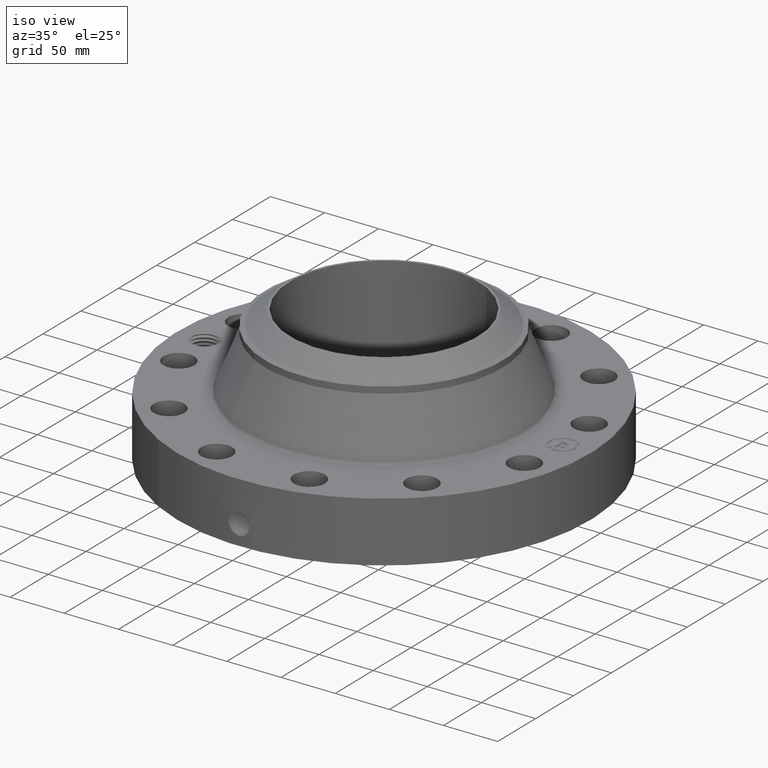
[diagram: clean part render]
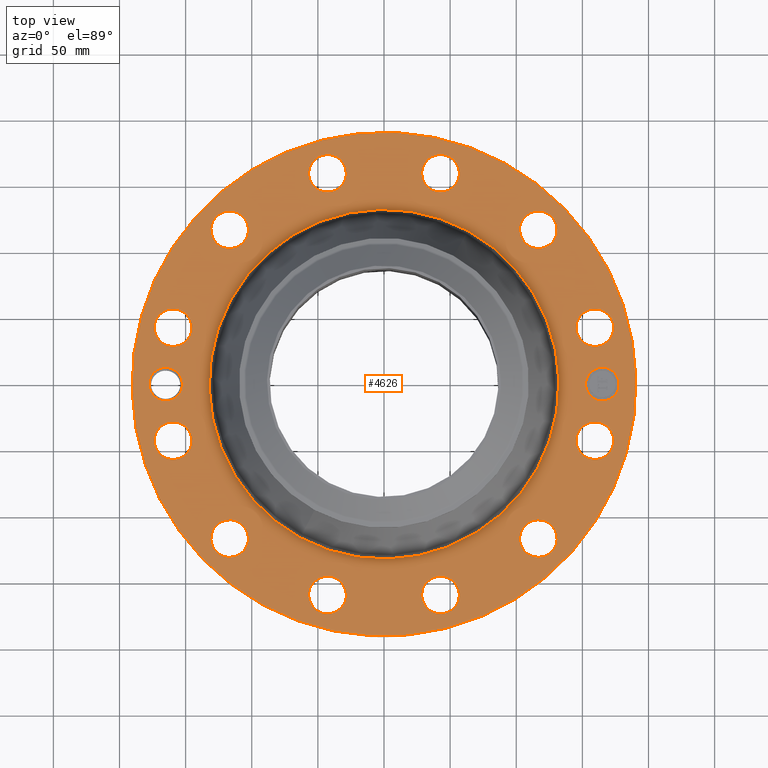
[diagram: tour spotlight — one face highlighted and labeled with its STEP entity id]
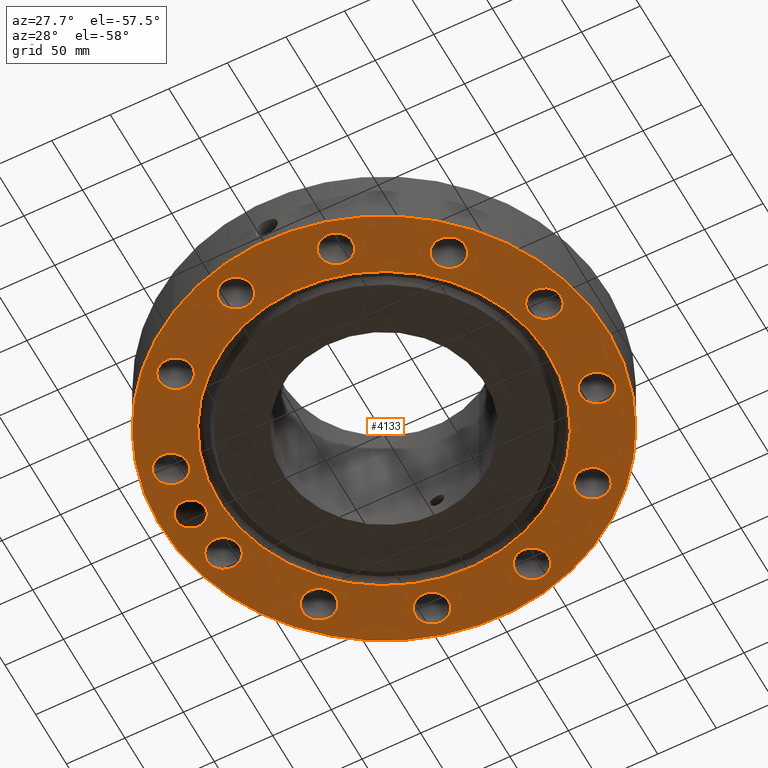
[diagram: tour spotlight — one face highlighted and labeled with its STEP entity id]
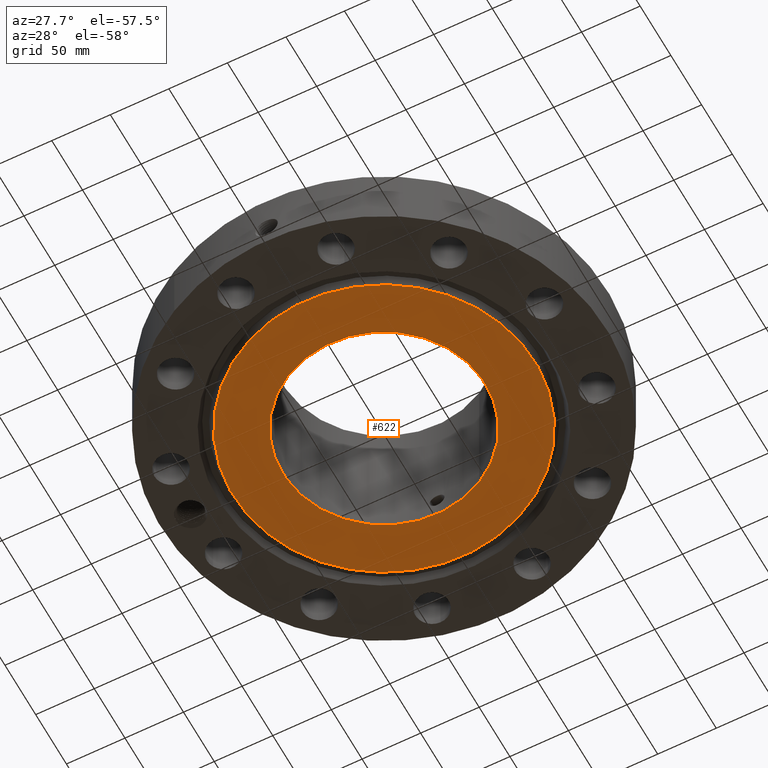
[diagram: tour spotlight — one face highlighted and labeled with its STEP entity id]
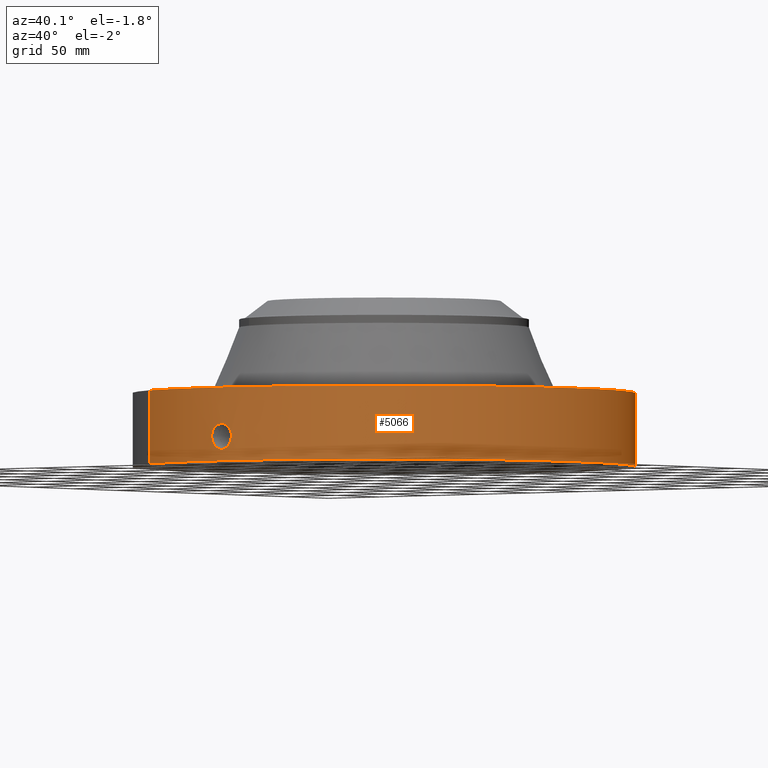
[diagram: tour spotlight — one face highlighted and labeled with its STEP entity id]
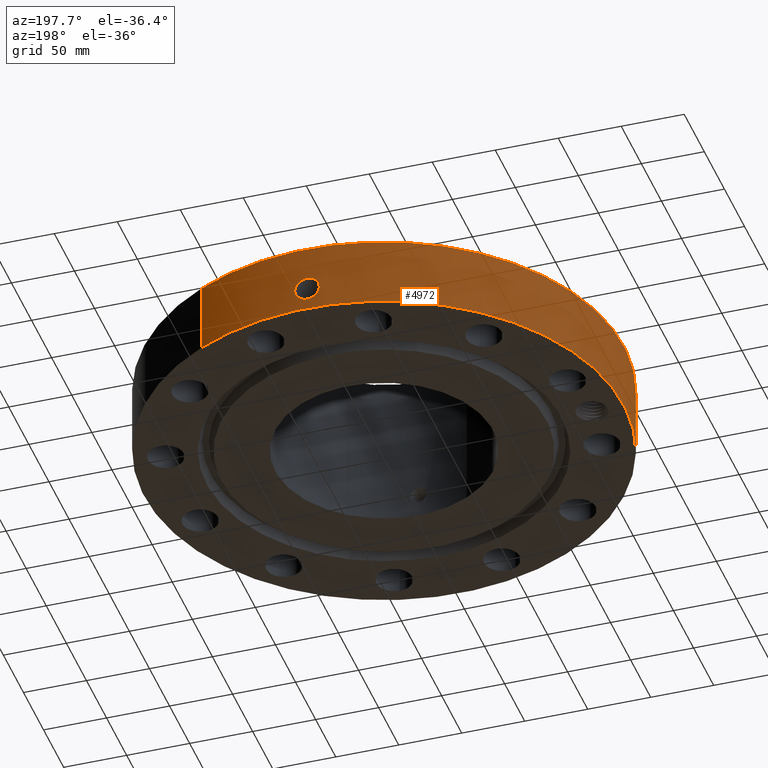
[diagram: tour spotlight — one face highlighted and labeled with its STEP entity id]
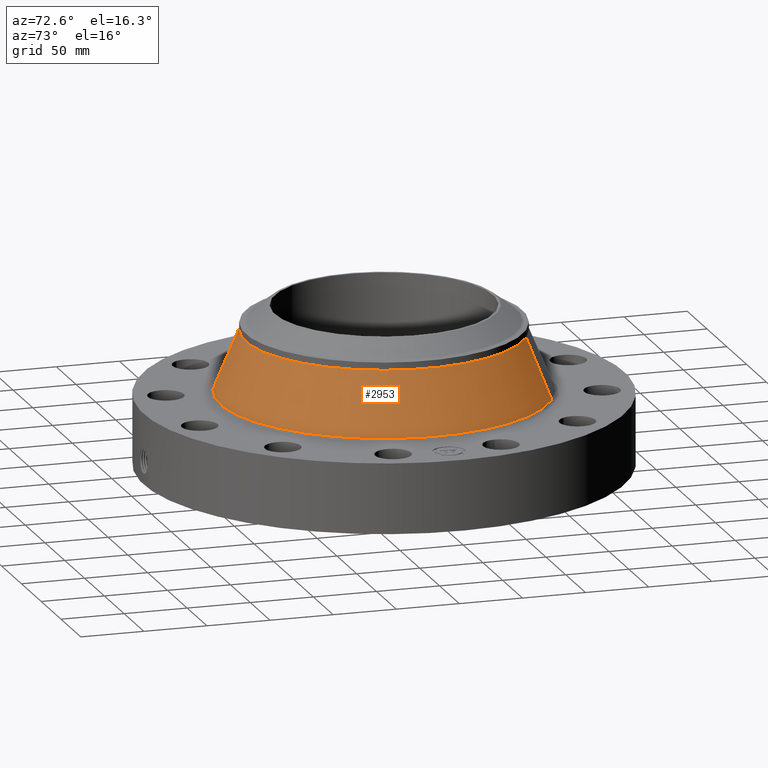
[diagram: tour spotlight — one face highlighted and labeled with its STEP entity id]
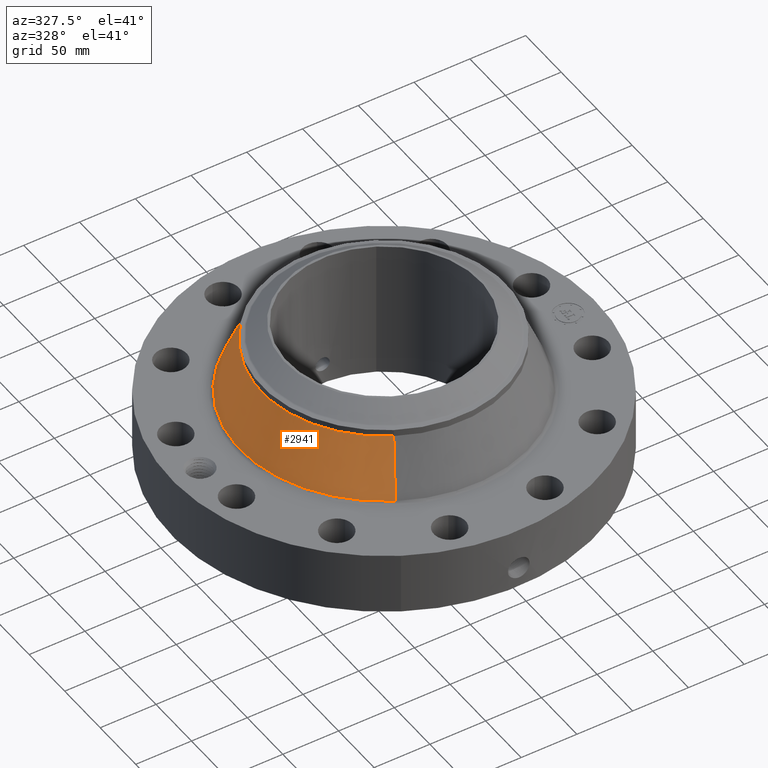
[diagram: tour spotlight — one face highlighted and labeled with its STEP entity id]
A machine part: a face-by-face anatomy tour. The part has 805 B-rep faces; the first image is the clean iso view, then the 7 largest visible faces are spotlighted one at a time (largest first), each with its STEP entity span.

Face 1 — top view, entity #4626. In plain terms, the highlighted planar face has unit normal (0, 0, -1).
Definition (entity closure, byte-faithful):
#3574=AXIS2_PLACEMENT_3D('Circle Axis2P3D',#3572,#3573,$) ;
#3600=AXIS2_PLACEMENT_3D('Circle Axis2P3D',#3598,#3599,$) ;
#4320=AXIS2_PLACEMENT_3D('Plane Axis2P3D',#4317,#4318,#4319) ;
#4324=AXIS2_PLACEMENT_3D('Circle Axis2P3D',#4322,#4323,$) ;
#4333=AXIS2_PLACEMENT_3D('Circle Axis2P3D',#4331,#4332,$) ;
#4364=AXIS2_PLACEMENT_3D('Circle Axis2P3D',#4362,#4363,$) ;
#4371=AXIS2_PLACEMENT_3D('Circle Axis2P3D',#4369,#4370,$) ;
#4378=AXIS2_PLACEMENT_3D('Circle Axis2P3D',#4376,#4377,$) ;
#4390=AXIS2_PLACEMENT_3D('Circle Axis2P3D',#4388,#4389,$) ;
#4399=AXIS2_PLACEMENT_3D('Circle Axis2P3D',#4397,#4398,$) ;
#4412=AXIS2_PLACEMENT_3D('Circle Axis2P3D',#4410,#4411,$) ;
#4421=AXIS2_PLACEMENT_3D('Circle Axis2P3D',#4419,#4420,$) ;
#4430=AXIS2_PLACEMENT_3D('Circle Axis2P3D',#4428,#4429,$) ;
#4439=AXIS2_PLACEMENT_3D('Circle Axis2P3D',#4437,#4438,$) ;
#4448=AXIS2_PLACEMENT_3D('Circle Axis2P3D',#4446,#4447,$) ;
#4457=AXIS2_PLACEMENT_3D('Circle Axis2P3D',#4455,#4456,$) ;
#4466=AXIS2_PLACEMENT_3D('Circle Axis2P3D',#4464,#4465,$) ;
#4475=AXIS2_PLACEMENT_3D('Circle Axis2P3D',#4473,#4474,$) ;
#4484=AXIS2_PLACEMENT_3D('Circle Axis2P3D',#4482,#4483,$) ;
#4493=AXIS2_PLACEMENT_3D('Circle Axis2P3D',#4491,#4492,$) ;
#4502=AXIS2_PLACEMENT_3D('Circle Axis2P3D',#4500,#4501,$) ;
#4511=AXIS2_PLACEMENT_3D('Circle Axis2P3D',#4509,#4510,$) ;
#4520=AXIS2_PLACEMENT_3D('Circle Axis2P3D',#4518,#4519,$) ;
#4529=AXIS2_PLACEMENT_3D('Circle Axis2P3D',#4527,#4528,$) ;
#4538=AXIS2_PLACEMENT_3D('Circle Axis2P3D',#4536,#4537,$) ;
#4547=AXIS2_PLACEMENT_3D('Circle Axis2P3D',#4545,#4546,$) ;
#4556=AXIS2_PLACEMENT_3D('Circle Axis2P3D',#4554,#4555,$) ;
#4565=AXIS2_PLACEMENT_3D('Circle Axis2P3D',#4563,#4564,$) ;
#4574=AXIS2_PLACEMENT_3D('Circle Axis2P3D',#4572,#4573,$) ;
#4583=AXIS2_PLACEMENT_3D('Circle Axis2P3D',#4581,#4582,$) ;
#4592=AXIS2_PLACEMENT_3D('Circle Axis2P3D',#4590,#4591,$) ;
#4601=AXIS2_PLACEMENT_3D('Circle Axis2P3D',#4599,#4600,$) ;
#4610=AXIS2_PLACEMENT_3D('Circle Axis2P3D',#4608,#4609,$) ;
#4619=AXIS2_PLACEMENT_3D('Circle Axis2P3D',#4617,#4618,$) ;
#3572=CARTESIAN_POINT('Axis2P3D Location',(0.,0.,2.19200000001)) ;
#3576=CARTESIAN_POINT('Vertex',(-2.49554499067,-4.56806446441,2.19200000001)) ;
#3578=CARTESIAN_POINT('Vertex',(2.49554499067,4.56806446441,2.19200000001)) ;
#3598=CARTESIAN_POINT('Axis2P3D Location',(0.,0.,2.19200000001)) ;
#4317=CARTESIAN_POINT('Axis2P3D Location',(0.,7.50000000003,2.19200000001)) ;
#4322=CARTESIAN_POINT('Axis2P3D Location',(0.,0.,2.19200000001)) ;
#4326=CARTESIAN_POINT('Vertex',(3.59569153955,6.5818692142,2.19200000001)) ;
#4328=CARTESIAN_POINT('Vertex',(-3.59569153955,-6.5818692142,2.19200000001)) ;
#4331=CARTESIAN_POINT('Axis2P3D Location',(0.,0.,2.19200000001)) ;
#4341=CARTESIAN_POINT('Control Point',(-6.00000000002,-2.23792987641E-015,2.19200000001)) ;
#4342=CARTESIAN_POINT('Control Point',(-6.00049933769,0.0123420386914,2.19200000001)) ;
#4343=CARTESIAN_POINT('Control Point',(-6.00137981959,0.0246614620911,2.19200000001)) ;
#4344=CARTESIAN_POINT('Control Point',(-6.00264056745,0.0369424491224,2.19200000001)) ;
#4345=CARTESIAN_POINT('Control Point',(-6.00427967865,0.0491692253593,2.19200000001)) ;
#4346=CARTESIAN_POINT('Control Point',(-6.00629426957,0.0613261910967,2.19200000001)) ;
#4347=CARTESIAN_POINT('Vertex',(-6.00000000002,-2.23792987641E-015,2.19200000001)) ;
#4349=CARTESIAN_POINT('Vertex',(-6.00629426957,0.0613261910967,2.19200000001)) ;
#4353=CARTESIAN_POINT('Control Point',(-6.00000000002,0.,2.19200000001)) ;
#4354=CARTESIAN_POINT('Control Point',(-6.00049957655,-0.0123479428806,2.19200000001)) ;
#4355=CARTESIAN_POINT('Control Point',(-6.00138066207,-0.0246732487918,2.19200000001)) ;
#4356=CARTESIAN_POINT('Control Point',(-6.00264220136,-0.0369596978224,2.19200000001)) ;
#4357=CARTESIAN_POINT('Control Point',(-6.00428214638,-0.0491912343058,2.19200000001)) ;
#4358=CARTESIAN_POINT('Control Point',(-6.00629748438,-0.0613520663319,2.19200000001)) ;
#4359=CARTESIAN_POINT('Vertex',(-6.00629748438,-0.0613520663319,2.19200000001)) ;
#4362=CARTESIAN_POINT('Axis2P3D Location',(-6.50000000003,2.23792987641E-015,2.19200000001)) ;
#4366=CARTESIAN_POINT('Vertex',(-6.06340267548,-0.238514205457,2.19200000001)) ;
#4369=CARTESIAN_POINT('Axis2P3D Location',(-6.50000000003,2.23792987641E-015,2.19200000001)) ;
#4373=CARTESIAN_POINT('Vertex',(-6.93659732457,0.238514205457,2.19200000001)) ;
#4376=CARTESIAN_POINT('Axis2P3D Location',(-6.50000000003,2.23792987641E-015,2.19200000001)) ;
#4388=CARTESIAN_POINT('Axis2P3D Location',(6.2785178709,-1.68232379317,2.19200000001)) ;
#4392=CARTESIAN_POINT('Vertex',(5.78707163624,-1.41384549155,2.19200000001)) ;
#4394=CARTESIAN_POINT('Vertex',(6.76996410556,-1.95080209479,2.19200000001)) ;
#4397=CARTESIAN_POINT('Axis2P3D Location',(6.2785178709,-1.68232379317,2.19200000001)) ;
#4410=CARTESIAN_POINT('Axis2P3D Location',(4.59619407773,-4.59619407773,2.19200000001)) ;
#4414=CARTESIAN_POINT('Vertex',(4.88755985073,-5.07442622463,2.19200000001)) ;
#4416=CARTESIAN_POINT('Vertex',(4.30482830473,-4.11796193083,2.19200000001)) ;
#4419=CARTESIAN_POINT('Axis2P3D Location',(4.59619407773,-4.59619407773,2.19200000001)) ;
#4428=CARTESIAN_POINT('Axis2P3D Location',(1.68232379317,-6.2785178709,2.19200000001)) ;
#4432=CARTESIAN_POINT('Vertex',(1.69553788094,-6.83836194552,2.19200000001)) ;
#4434=CARTESIAN_POINT('Vertex',(1.66910970541,-5.71867379628,2.19200000001)) ;
#4437=CARTESIAN_POINT('Axis2P3D Location',(1.68232379317,-6.2785178709,2.19200000001)) ;
#4446=CARTESIAN_POINT('Axis2P3D Location',(-1.68232379317,-6.2785178709,2.19200000001)) ;
#4450=CARTESIAN_POINT('Vertex',(-1.95080209479,-6.76996410556,2.19200000001)) ;
#4452=CARTESIAN_POINT('Vertex',(-1.41384549155,-5.78707163624,2.19200000001)) ;
#4455=CARTESIAN_POINT('Axis2P3D Location',(-1.68232379317,-6.2785178709,2.19200000001)) ;
#4464=CARTESIAN_POINT('Axis2P3D Location',(-4.59619407773,-4.59619407773,2.19200000001)) ;
#4468=CARTESIAN_POINT('Vertex',(-5.07442622463,-4.88755985073,2.19200000001)) ;
#4470=CARTESIAN_POINT('Vertex',(-4.11796193083,-4.30482830473,2.19200000001)) ;
#4473=CARTESIAN_POINT('Axis2P3D Location',(-4.59619407773,-4.59619407773,2.19200000001)) ;
#4482=CARTESIAN_POINT('Axis2P3D Location',(-6.2785178709,-1.68232379317,2.19200000001)) ;
#4486=CARTESIAN_POINT('Vertex',(-6.83836194552,-1.69553788094,2.19200000001)) ;
#4488=CARTESIAN_POINT('Vertex',(-5.71867379628,-1.66910970541,2.19200000001)) ;
#4491=CARTESIAN_POINT('Axis2P3D Location',(-6.2785178709,-1.68232379317,2.19200000001)) ;
#4500=CARTESIAN_POINT('Axis2P3D Location',(-6.2785178709,1.68232379317,2.19200000001)) ;
#4504=CARTESIAN_POINT('Vertex',(-6.76996410556,1.95080209479,2.19200000001)) ;
#4506=CARTESIAN_POINT('Vertex',(-5.78707163624,1.41384549155,2.19200000001)) ;
#4509=CARTESIAN_POINT('Axis2P3D Location',(-6.2785178709,1.68232379317,2.19200000001)) ;
#4518=CARTESIAN_POINT('Axis2P3D Location',(-4.59619407773,4.59619407773,2.19200000001)) ;
#4522=CARTESIAN_POINT('Vertex',(-4.88755985073,5.07442622463,2.19200000001)) ;
#4524=CARTESIAN_POINT('Vertex',(-4.30482830473,4.11796193083,2.19200000001)) ;
#4527=CARTESIAN_POINT('Axis2P3D Location',(-4.59619407773,4.59619407773,2.19200000001)) ;
#4536=CARTESIAN_POINT('Axis2P3D Location',(-1.68232379317,6.2785178709,2.19200000001)) ;
#4540=CARTESIAN_POINT('Vertex',(-1.69553788094,6.83836194552,2.19200000001)) ;
#4542=CARTESIAN_POINT('Vertex',(-1.66910970541,5.71867379628,2.19200000001)) ;
#4545=CARTESIAN_POINT('Axis2P3D Location',(-1.68232379317,6.2785178709,2.19200000001)) ;
#4554=CARTESIAN_POINT('Axis2P3D Location',(1.68232379317,6.2785178709,2.19200000001)) ;
#4558=CARTESIAN_POINT('Vertex',(1.95080209479,6.76996410556,2.19200000001)) ;
#4560=CARTESIAN_POINT('Vertex',(1.41384549155,5.78707163624,2.19200000001)) ;
#4563=CARTESIAN_POINT('Axis2P3D Location',(1.68232379317,6.2785178709,2.19200000001)) ;
#4572=CARTESIAN_POINT('Axis2P3D Location',(4.59619407773,4.59619407773,2.19200000001)) ;
#4576=CARTESIAN_POINT('Vertex',(5.07442622463,4.88755985073,2.19200000001)) ;
#4578=CARTESIAN_POINT('Vertex',(4.11796193083,4.30482830473,2.19200000001)) ;
#4581=CARTESIAN_POINT('Axis2P3D Location',(4.59619407773,4.59619407773,2.19200000001)) ;
#4590=CARTESIAN_POINT('Axis2P3D Location',(6.2785178709,1.68232379317,2.19200000001)) ;
#4594=CARTESIAN_POINT('Vertex',(6.83836194552,1.69553788094,2.19200000001)) ;
#4596=CARTESIAN_POINT('Vertex',(5.71867379628,1.66910970541,2.19200000001)) ;
#4599=CARTESIAN_POINT('Axis2P3D Location',(6.2785178709,1.68232379317,2.19200000001)) ;
#4608=CARTESIAN_POINT('Axis2P3D Location',(6.50000000003,0.,2.19200000001)) ;
#4612=CARTESIAN_POINT('Vertex',(6.50000000003,0.499999995002,2.19200000001)) ;
#4614=CARTESIAN_POINT('Vertex',(6.50000000003,-0.499999995002,2.19200000001)) ;
#4617=CARTESIAN_POINT('Axis2P3D Location',(6.50000000003,0.,2.19200000001)) ;
#3573=DIRECTION('Axis2P3D Direction',(0.,0.,-0.0393700787402)) ;
#3599=DIRECTION('Axis2P3D Direction',(0.,0.,-0.0393700787402)) ;
#4318=DIRECTION('Axis2P3D Direction',(0.,0.,-0.0393700787402)) ;
#4319=DIRECTION('Axis2P3D XDirection',(0.0393700787402,0.,0.)) ;
#4323=DIRECTION('Axis2P3D Direction',(0.,0.,-0.0393700787402)) ;
#4332=DIRECTION('Axis2P3D Direction',(0.,0.,-0.0393700787402)) ;
#4363=DIRECTION('Axis2P3D Direction',(0.,0.,-0.0393700787402)) ;
#4370=DIRECTION('Axis2P3D Direction',(0.,0.,-0.0393700787402)) ;
#4377=DIRECTION('Axis2P3D Direction',(0.,0.,-0.0393700787402)) ;
#4389=DIRECTION('Axis2P3D Direction',(0.,0.,-0.0393700787402)) ;
#4398=DIRECTION('Axis2P3D Direction',(0.,0.,-0.0393700787402)) ;
#4411=DIRECTION('Axis2P3D Direction',(0.,0.,-0.0393700787402)) ;
#4420=DIRECTION('Axis2P3D Direction',(0.,0.,-0.0393700787402)) ;
#4429=DIRECTION('Axis2P3D Direction',(0.,0.,-0.0393700787402)) ;
#4438=DIRECTION('Axis2P3D Direction',(0.,0.,-0.0393700787402)) ;
#4447=DIRECTION('Axis2P3D Direction',(0.,0.,-0.0393700787402)) ;
#4456=DIRECTION('Axis2P3D Direction',(0.,0.,-0.0393700787402)) ;
#4465=DIRECTION('Axis2P3D Direction',(0.,0.,-0.0393700787402)) ;
#4474=DIRECTION('Axis2P3D Direction',(0.,0.,-0.0393700787402)) ;
#4483=DIRECTION('Axis2P3D Direction',(0.,0.,-0.0393700787402)) ;
#4492=DIRECTION('Axis2P3D Direction',(0.,0.,-0.0393700787402)) ;
#4501=DIRECTION('Axis2P3D Direction',(0.,0.,-0.0393700787402)) ;
#4510=DIRECTION('Axis2P3D Direction',(0.,0.,-0.0393700787402)) ;
#4519=DIRECTION('Axis2P3D Direction',(0.,0.,-0.0393700787402)) ;
#4528=DIRECTION('Axis2P3D Direction',(0.,0.,-0.0393700787402)) ;
#4537=DIRECTION('Axis2P3D Direction',(0.,0.,-0.0393700787402)) ;
#4546=DIRECTION('Axis2P3D Direction',(0.,0.,-0.0393700787402)) ;
#4555=DIRECTION('Axis2P3D Direction',(0.,0.,-0.0393700787402)) ;
#4564=DIRECTION('Axis2P3D Direction',(0.,0.,-0.0393700787402)) ;
#4573=DIRECTION('Axis2P3D Direction',(0.,0.,-0.0393700787402)) ;
#4582=DIRECTION('Axis2P3D Direction',(0.,0.,-0.0393700787402)) ;
#4591=DIRECTION('Axis2P3D Direction',(0.,0.,-0.0393700787402)) ;
#4600=DIRECTION('Axis2P3D Direction',(0.,0.,-0.0393700787402)) ;
#4609=DIRECTION('Axis2P3D Direction',(0.,0.,-0.0393700787402)) ;
#4618=DIRECTION('Axis2P3D Direction',(0.,0.,-0.0393700787402)) ;
#4337=ORIENTED_EDGE('',*,*,#4330,.F.) ;
#4338=ORIENTED_EDGE('',*,*,#4335,.F.) ;
#4382=ORIENTED_EDGE('',*,*,#4351,.F.) ;
#4383=ORIENTED_EDGE('',*,*,#4361,.T.) ;
#4384=ORIENTED_EDGE('',*,*,#4368,.T.) ;
#4385=ORIENTED_EDGE('',*,*,#4375,.T.) ;
#4386=ORIENTED_EDGE('',*,*,#4380,.T.) ;
#4403=ORIENTED_EDGE('',*,*,#4396,.T.) ;
#4404=ORIENTED_EDGE('',*,*,#4401,.T.) ;
#4407=ORIENTED_EDGE('',*,*,#3580,.T.) ;
#4408=ORIENTED_EDGE('',*,*,#3602,.T.) ;
#4425=ORIENTED_EDGE('',*,*,#4418,.T.) ;
#4426=ORIENTED_EDGE('',*,*,#4423,.T.) ;
#4443=ORIENTED_EDGE('',*,*,#4436,.T.) ;
#4444=ORIENTED_EDGE('',*,*,#4441,.T.) ;
#4461=ORIENTED_EDGE('',*,*,#4454,.T.) ;
#4462=ORIENTED_EDGE('',*,*,#4459,.T.) ;
#4479=ORIENTED_EDGE('',*,*,#4472,.T.) ;
#4480=ORIENTED_EDGE('',*,*,#4477,.T.) ;
#4497=ORIENTED_EDGE('',*,*,#4490,.T.) ;
#4498=ORIENTED_EDGE('',*,*,#4495,.T.) ;
#4515=ORIENTED_EDGE('',*,*,#4508,.T.) ;
#4516=ORIENTED_EDGE('',*,*,#4513,.T.) ;
#4533=ORIENTED_EDGE('',*,*,#4526,.T.) ;
#4534=ORIENTED_EDGE('',*,*,#4531,.T.) ;
#4551=ORIENTED_EDGE('',*,*,#4544,.T.) ;
#4552=ORIENTED_EDGE('',*,*,#4549,.T.) ;
#4569=ORIENTED_EDGE('',*,*,#4562,.T.) ;
#4570=ORIENTED_EDGE('',*,*,#4567,.T.) ;
#4587=ORIENTED_EDGE('',*,*,#4580,.T.) ;
#4588=ORIENTED_EDGE('',*,*,#4585,.T.) ;
#4605=ORIENTED_EDGE('',*,*,#4598,.T.) ;
#4606=ORIENTED_EDGE('',*,*,#4603,.T.) ;
#4623=ORIENTED_EDGE('',*,*,#4616,.T.) ;
#4624=ORIENTED_EDGE('',*,*,#4621,.T.) ;
#4387=FACE_BOUND('',#4381,.T.) ;
#4405=FACE_BOUND('',#4402,.T.) ;
#4409=FACE_BOUND('',#4406,.T.) ;
#4427=FACE_BOUND('',#4424,.T.) ;
#4445=FACE_BOUND('',#4442,.T.) ;
#4463=FACE_BOUND('',#4460,.T.) ;
#4481=FACE_BOUND('',#4478,.T.) ;
#4499=FACE_BOUND('',#4496,.T.) ;
#4517=FACE_BOUND('',#4514,.T.) ;
#4535=FACE_BOUND('',#4532,.T.) ;
#4553=FACE_BOUND('',#4550,.T.) ;
#4571=FACE_BOUND('',#4568,.T.) ;
#4589=FACE_BOUND('',#4586,.T.) ;
#4607=FACE_BOUND('',#4604,.T.) ;
#4625=FACE_BOUND('',#4622,.T.) ;
#4626=ADVANCED_FACE('PartBody',(#4339,#4387,#4405,#4409,#4427,#4445,#4463,#4481,#4499,#4517,#4535,#4553,#4571,#4589,#4607,#4625),#4321,.F.) ;
#4340=B_SPLINE_CURVE_WITH_KNOTS('',5,(#4341,#4342,#4343,#4344,#4345,#4346),.UNSPECIFIED.,.F.,.U.,(6,6),(0.,2.15175433905),.UNSPECIFIED.) ;
#4352=B_SPLINE_CURVE_WITH_KNOTS('',5,(#4353,#4354,#4355,#4356,#4357,#4358),.UNSPECIFIED.,.F.,.U.,(6,6),(0.,2.15278369601),.UNSPECIFIED.) ;
#3575=CIRCLE('generated circle',#3574,5.20528171682) ;
#3601=CIRCLE('generated circle',#3600,5.20528171682) ;
#4325=CIRCLE('generated circle',#4324,7.50000000003) ;
#4334=CIRCLE('generated circle',#4333,7.50000000003) ;
#4365=CIRCLE('generated circle',#4364,0.497500000002) ;
#4372=CIRCLE('generated circle',#4371,0.497500000002) ;
#4379=CIRCLE('generated circle',#4378,0.497500000002) ;
#4391=CIRCLE('generated circle',#4390,0.560000000002) ;
#4400=CIRCLE('generated circle',#4399,0.560000000002) ;
#4413=CIRCLE('generated circle',#4412,0.560000000002) ;
#4422=CIRCLE('generated circle',#4421,0.560000000002) ;
#4431=CIRCLE('generated circle',#4430,0.560000000002) ;
#4440=CIRCLE('generated circle',#4439,0.560000000002) ;
#4449=CIRCLE('generated circle',#4448,0.560000000002) ;
#4458=CIRCLE('generated circle',#4457,0.560000000002) ;
#4467=CIRCLE('generated circle',#4466,0.560000000002) ;
#4476=CIRCLE('generated circle',#4475,0.560000000002) ;
#4485=CIRCLE('generated circle',#4484,0.560000000002) ;
#4494=CIRCLE('generated circle',#4493,0.560000000002) ;
#4503=CIRCLE('generated circle',#4502,0.560000000002) ;
#4512=CIRCLE('generated circle',#4511,0.560000000002) ;
#4521=CIRCLE('generated circle',#4520,0.560000000002) ;
#4530=CIRCLE('generated circle',#4529,0.560000000002) ;
#4539=CIRCLE('generated circle',#4538,0.560000000002) ;
#4548=CIRCLE('generated circle',#4547,0.560000000002) ;
#4557=CIRCLE('generated circle',#4556,0.560000000002) ;
#4566=CIRCLE('generated circle',#4565,0.560000000002) ;
#4575=CIRCLE('generated circle',#4574,0.560000000002) ;
#4584=CIRCLE('generated circle',#4583,0.560000000002) ;
#4593=CIRCLE('generated circle',#4592,0.560000000002) ;
#4602=CIRCLE('generated circle',#4601,0.560000000002) ;
#4611=CIRCLE('generated circle',#4610,0.499999995002) ;
#4620=CIRCLE('generated circle',#4619,0.499999995002) ;
#3580=EDGE_CURVE('',#3577,#3579,#3575,.T.) ;
#3602=EDGE_CURVE('',#3579,#3577,#3601,.T.) ;
#4330=EDGE_CURVE('',#4327,#4329,#4325,.T.) ;
#4335=EDGE_CURVE('',#4329,#4327,#4334,.T.) ;
#4351=EDGE_CURVE('',#4348,#4350,#4340,.T.) ;
#4361=EDGE_CURVE('',#4348,#4360,#4352,.T.) ;
#4368=EDGE_CURVE('',#4360,#4367,#4365,.T.) ;
#4375=EDGE_CURVE('',#4367,#4374,#4372,.T.) ;
#4380=EDGE_CURVE('',#4374,#4350,#4379,.T.) ;
#4396=EDGE_CURVE('',#4393,#4395,#4391,.T.) ;
#4401=EDGE_CURVE('',#4395,#4393,#4400,.T.) ;
#4418=EDGE_CURVE('',#4415,#4417,#4413,.T.) ;
#4423=EDGE_CURVE('',#4417,#4415,#4422,.T.) ;
#4436=EDGE_CURVE('',#4433,#4435,#4431,.T.) ;
#4441=EDGE_CURVE('',#4435,#4433,#4440,.T.) ;
#4454=EDGE_CURVE('',#4451,#4453,#4449,.T.) ;
#4459=EDGE_CURVE('',#4453,#4451,#4458,.T.) ;
#4472=EDGE_CURVE('',#4469,#4471,#4467,.T.) ;
#4477=EDGE_CURVE('',#4471,#4469,#4476,.T.) ;
#4490=EDGE_CURVE('',#4487,#4489,#4485,.T.) ;
#4495=EDGE_CURVE('',#4489,#4487,#4494,.T.) ;
#4508=EDGE_CURVE('',#4505,#4507,#4503,.T.) ;
#4513=EDGE_CURVE('',#4507,#4505,#4512,.T.) ;
#4526=EDGE_CURVE('',#4523,#4525,#4521,.T.) ;
#4531=EDGE_CURVE('',#4525,#4523,#4530,.T.) ;
#4544=EDGE_CURVE('',#4541,#4543,#4539,.T.) ;
#4549=EDGE_CURVE('',#4543,#4541,#4548,.T.) ;
#4562=EDGE_CURVE('',#4559,#4561,#4557,.T.) ;
#4567=EDGE_CURVE('',#4561,#4559,#4566,.T.) ;
#4580=EDGE_CURVE('',#4577,#4579,#4575,.T.) ;
#4585=EDGE_CURVE('',#4579,#4577,#4584,.T.) ;
#4598=EDGE_CURVE('',#4595,#4597,#4593,.T.) ;
#4603=EDGE_CURVE('',#4597,#4595,#4602,.T.) ;
#4616=EDGE_CURVE('',#4613,#4615,#4611,.T.) ;
#4621=EDGE_CURVE('',#4615,#4613,#4620,.T.) ;
#4336=EDGE_LOOP('',(#4337,#4338)) ;
#4381=EDGE_LOOP('',(#4382,#4383,#4384,#4385,#4386)) ;
#4402=EDGE_LOOP('',(#4403,#4404)) ;
#4406=EDGE_LOOP('',(#4407,#4408)) ;
#4424=EDGE_LOOP('',(#4425,#4426)) ;
#4442=EDGE_LOOP('',(#4443,#4444)) ;
#4460=EDGE_LOOP('',(#4461,#4462)) ;
#4478=EDGE_LOOP('',(#4479,#4480)) ;
#4496=EDGE_LOOP('',(#4497,#4498)) ;
#4514=EDGE_LOOP('',(#4515,#4516)) ;
#4532=EDGE_LOOP('',(#4533,#4534)) ;
#4550=EDGE_LOOP('',(#4551,#4552)) ;
#4568=EDGE_LOOP('',(#4569,#4570)) ;
#4586=EDGE_LOOP('',(#4587,#4588)) ;
#4604=EDGE_LOOP('',(#4605,#4606)) ;
#4622=EDGE_LOOP('',(#4623,#4624)) ;
#4339=FACE_OUTER_BOUND('',#4336,.T.) ;
#4321=PLANE('',#4320) ;
#3577=VERTEX_POINT('',#3576) ;
#3579=VERTEX_POINT('',#3578) ;
#4327=VERTEX_POINT('',#4326) ;
#4329=VERTEX_POINT('',#4328) ;
#4348=VERTEX_POINT('',#4347) ;
#4350=VERTEX_POINT('',#4349) ;
#4360=VERTEX_POINT('',#4359) ;
#4367=VERTEX_POINT('',#4366) ;
#4374=VERTEX_POINT('',#4373) ;
#4393=VERTEX_POINT('',#4392) ;
#4395=VERTEX_POINT('',#4394) ;
#4415=VERTEX_POINT('',#4414) ;
#4417=VERTEX_POINT('',#4416) ;
#4433=VERTEX_POINT('',#4432) ;
#4435=VERTEX_POINT('',#4434) ;
#4451=VERTEX_POINT('',#4450) ;
#4453=VERTEX_POINT('',#4452) ;
#4469=VERTEX_POINT('',#4468) ;
#4471=VERTEX_POINT('',#4470) ;
#4487=VERTEX_POINT('',#4486) ;
#4489=VERTEX_POINT('',#4488) ;
#4505=VERTEX_POINT('',#4504) ;
#4507=VERTEX_POINT('',#4506) ;
#4523=VERTEX_POINT('',#4522) ;
#4525=VERTEX_POINT('',#4524) ;
#4541=VERTEX_POINT('',#4540) ;
#4543=VERTEX_POINT('',#4542) ;
#4559=VERTEX_POINT('',#4558) ;
#4561=VERTEX_POINT('',#4560) ;
#4577=VERTEX_POINT('',#4576) ;
#4579=VERTEX_POINT('',#4578) ;
#4595=VERTEX_POINT('',#4594) ;
#4597=VERTEX_POINT('',#4596) ;
#4613=VERTEX_POINT('',#4612) ;
#4615=VERTEX_POINT('',#4614) ;

Face 2 — auxiliary view, entity #4133. In plain terms, the highlighted planar face has unit normal (0, 0, -1).
Definition (entity closure, byte-faithful):
#598=AXIS2_PLACEMENT_3D('Plane Axis2P3D',#595,#596,#597) ;
#3275=AXIS2_PLACEMENT_3D('Circle Axis2P3D',#3273,#3274,$) ;
#3301=AXIS2_PLACEMENT_3D('Circle Axis2P3D',#3299,#3300,$) ;
#3849=AXIS2_PLACEMENT_3D('Circle Axis2P3D',#3847,#3848,$) ;
#3858=AXIS2_PLACEMENT_3D('Circle Axis2P3D',#3856,#3857,$) ;
#3867=AXIS2_PLACEMENT_3D('Circle Axis2P3D',#3865,#3866,$) ;
#3876=AXIS2_PLACEMENT_3D('Circle Axis2P3D',#3874,#3875,$) ;
#3883=AXIS2_PLACEMENT_3D('Circle Axis2P3D',#3881,#3882,$) ;
#3915=AXIS2_PLACEMENT_3D('Circle Axis2P3D',#3913,#3914,$) ;
#3924=AXIS2_PLACEMENT_3D('Circle Axis2P3D',#3922,#3923,$) ;
#3933=AXIS2_PLACEMENT_3D('Circle Axis2P3D',#3931,#3932,$) ;
#3942=AXIS2_PLACEMENT_3D('Circle Axis2P3D',#3940,#3941,$) ;
#3951=AXIS2_PLACEMENT_3D('Circle Axis2P3D',#3949,#3950,$) ;
#3960=AXIS2_PLACEMENT_3D('Circle Axis2P3D',#3958,#3959,$) ;
#3969=AXIS2_PLACEMENT_3D('Circle Axis2P3D',#3967,#3968,$) ;
#3978=AXIS2_PLACEMENT_3D('Circle Axis2P3D',#3976,#3977,$) ;
#3987=AXIS2_PLACEMENT_3D('Circle Axis2P3D',#3985,#3986,$) ;
#3996=AXIS2_PLACEMENT_3D('Circle Axis2P3D',#3994,#3995,$) ;
#4005=AXIS2_PLACEMENT_3D('Circle Axis2P3D',#4003,#4004,$) ;
#4014=AXIS2_PLACEMENT_3D('Circle Axis2P3D',#4012,#4013,$) ;
#4023=AXIS2_PLACEMENT_3D('Circle Axis2P3D',#4021,#4022,$) ;
#4032=AXIS2_PLACEMENT_3D('Circle Axis2P3D',#4030,#4031,$) ;
#4041=AXIS2_PLACEMENT_3D('Circle Axis2P3D',#4039,#4040,$) ;
#4050=AXIS2_PLACEMENT_3D('Circle Axis2P3D',#4048,#4049,$) ;
#4059=AXIS2_PLACEMENT_3D('Circle Axis2P3D',#4057,#4058,$) ;
#4068=AXIS2_PLACEMENT_3D('Circle Axis2P3D',#4066,#4067,$) ;
#4077=AXIS2_PLACEMENT_3D('Circle Axis2P3D',#4075,#4076,$) ;
#4086=AXIS2_PLACEMENT_3D('Circle Axis2P3D',#4084,#4085,$) ;
#4095=AXIS2_PLACEMENT_3D('Circle Axis2P3D',#4093,#4094,$) ;
#4104=AXIS2_PLACEMENT_3D('Circle Axis2P3D',#4102,#4103,$) ;
#4113=AXIS2_PLACEMENT_3D('Circle Axis2P3D',#4111,#4112,$) ;
#4122=AXIS2_PLACEMENT_3D('Circle Axis2P3D',#4120,#4121,$) ;
#595=CARTESIAN_POINT('Axis2P3D Location',(0.,3.40650000001,0.)) ;
#3273=CARTESIAN_POINT('Axis2P3D Location',(0.,0.,-3.49676543189E-017)) ;
#3277=CARTESIAN_POINT('Vertex',(-2.65937346265,4.86795047083,-3.49676543189E-017)) ;
#3279=CARTESIAN_POINT('Vertex',(2.65937346265,-4.86795047083,-3.49676543189E-017)) ;
#3299=CARTESIAN_POINT('Axis2P3D Location',(0.,0.,-3.49676543189E-017)) ;
#3847=CARTESIAN_POINT('Axis2P3D Location',(0.,0.,0.)) ;
#3851=CARTESIAN_POINT('Vertex',(-3.59569153955,-6.5818692142,8.39223703654E-016)) ;
#3853=CARTESIAN_POINT('Vertex',(3.59569153955,6.5818692142,8.39223703654E-016)) ;
#3856=CARTESIAN_POINT('Axis2P3D Location',(0.,0.,0.)) ;
#3865=CARTESIAN_POINT('Axis2P3D Location',(-6.50000000003,1.1189649382E-015,0.)) ;
#3869=CARTESIAN_POINT('Vertex',(-6.06340267548,-0.238514205457,0.)) ;
#3871=CARTESIAN_POINT('Vertex',(-6.99488532373,0.0509388494612,0.)) ;
#3874=CARTESIAN_POINT('Axis2P3D Location',(-6.50000000003,1.1189649382E-015,0.)) ;
#3878=CARTESIAN_POINT('Vertex',(-6.93659732457,0.238514205457,0.)) ;
#3881=CARTESIAN_POINT('Axis2P3D Location',(-6.50000000003,1.1189649382E-015,0.)) ;
#3885=CARTESIAN_POINT('Vertex',(-6.96729520557,0.170708643233,0.)) ;
#3889=CARTESIAN_POINT('Control Point',(-6.9872706039,0.112126542099,0.)) ;
#3890=CARTESIAN_POINT('Control Point',(-6.98400342667,0.124093188733,0.)) ;
#3891=CARTESIAN_POINT('Control Point',(-6.98036723763,0.13594991959,0.)) ;
#3892=CARTESIAN_POINT('Control Point',(-6.97636660442,0.14768136448,0.)) ;
#3893=CARTESIAN_POINT('Control Point',(-6.97200709578,0.159272477858,0.)) ;
#3894=CARTESIAN_POINT('Control Point',(-6.96729520557,0.170708643233,0.)) ;
#3895=CARTESIAN_POINT('Vertex',(-6.9872706039,0.112126542099,1.31128703696E-017)) ;
#3899=CARTESIAN_POINT('Control Point',(-6.9872706039,0.112126542099,0.)) ;
#3900=CARTESIAN_POINT('Control Point',(-6.98955034932,0.0999873334233,0.)) ;
#3901=CARTESIAN_POINT('Control Point',(-6.99145400954,0.0877832278685,0.)) ;
#3902=CARTESIAN_POINT('Control Point',(-6.99297878672,0.0755298269189,0.)) ;
#3903=CARTESIAN_POINT('Control Point',(-6.99412284698,0.0632430092306,0.)) ;
#3904=CARTESIAN_POINT('Control Point',(-6.99488532373,0.0509388494612,0.)) ;
#3913=CARTESIAN_POINT('Axis2P3D Location',(6.2785178709,-1.68232379317,0.)) ;
#3917=CARTESIAN_POINT('Vertex',(6.76996410556,-1.95080209479,0.)) ;
#3919=CARTESIAN_POINT('Vertex',(5.78707163624,-1.41384549155,0.)) ;
#3922=CARTESIAN_POINT('Axis2P3D Location',(6.2785178709,-1.68232379317,0.)) ;
#3931=CARTESIAN_POINT('Axis2P3D Location',(4.59619407773,-4.59619407773,0.)) ;
#3935=CARTESIAN_POINT('Vertex',(4.30482830473,-4.11796193083,0.)) ;
#3937=CARTESIAN_POINT('Vertex',(4.88755985073,-5.07442622463,0.)) ;
#3940=CARTESIAN_POINT('Axis2P3D Location',(4.59619407773,-4.59619407773,0.)) ;
#3949=CARTESIAN_POINT('Axis2P3D Location',(1.68232379317,-6.2785178709,0.)) ;
#3953=CARTESIAN_POINT('Vertex',(1.66910970541,-5.71867379628,0.)) ;
#3955=CARTESIAN_POINT('Vertex',(1.69553788094,-6.83836194552,0.)) ;
#3958=CARTESIAN_POINT('Axis2P3D Location',(1.68232379317,-6.2785178709,0.)) ;
#3967=CARTESIAN_POINT('Axis2P3D Location',(-1.68232379317,-6.2785178709,0.)) ;
#3971=CARTESIAN_POINT('Vertex',(-1.41384549155,-5.78707163624,0.)) ;
#3973=CARTESIAN_POINT('Vertex',(-1.95080209479,-6.76996410556,0.)) ;
#3976=CARTESIAN_POINT('Axis2P3D Location',(-1.68232379317,-6.2785178709,0.)) ;
#3985=CARTESIAN_POINT('Axis2P3D Location',(-4.59619407773,-4.59619407773,0.)) ;
#3989=CARTESIAN_POINT('Vertex',(-4.11796193083,-4.30482830473,0.)) ;
#3991=CARTESIAN_POINT('Vertex',(-5.07442622463,-4.88755985073,-1.67844740731E-015)) ;
#3994=CARTESIAN_POINT('Axis2P3D Location',(-4.59619407773,-4.59619407773,0.)) ;
#4003=CARTESIAN_POINT('Axis2P3D Location',(-6.2785178709,-1.68232379317,0.)) ;
#4007=CARTESIAN_POINT('Vertex',(-5.71867379628,-1.66910970541,0.)) ;
#4009=CARTESIAN_POINT('Vertex',(-6.83836194552,-1.69553788094,0.)) ;
#4012=CARTESIAN_POINT('Axis2P3D Location',(-6.2785178709,-1.68232379317,0.)) ;
#4021=CARTESIAN_POINT('Axis2P3D Location',(-6.2785178709,1.68232379317,0.)) ;
#4025=CARTESIAN_POINT('Vertex',(-5.78707163624,1.41384549155,0.)) ;
#4027=CARTESIAN_POINT('Vertex',(-6.76996410556,1.95080209479,0.)) ;
#4030=CARTESIAN_POINT('Axis2P3D Location',(-6.2785178709,1.68232379317,0.)) ;
#4039=CARTESIAN_POINT('Axis2P3D Location',(-4.59619407773,4.59619407773,0.)) ;
#4043=CARTESIAN_POINT('Vertex',(-4.30482830473,4.11796193083,0.)) ;
#4045=CARTESIAN_POINT('Vertex',(-4.88755985073,5.07442622463,0.)) ;
#4048=CARTESIAN_POINT('Axis2P3D Location',(-4.59619407773,4.59619407773,0.)) ;
#4057=CARTESIAN_POINT('Axis2P3D Location',(-1.68232379317,6.2785178709,0.)) ;
#4061=CARTESIAN_POINT('Vertex',(-1.66910970541,5.71867379628,0.)) ;
#4063=CARTESIAN_POINT('Vertex',(-1.69553788094,6.83836194552,0.)) ;
#4066=CARTESIAN_POINT('Axis2P3D Location',(-1.68232379317,6.2785178709,0.)) ;
#4075=CARTESIAN_POINT('Axis2P3D Location',(1.68232379317,6.2785178709,0.)) ;
#4079=CARTESIAN_POINT('Vertex',(1.41384549155,5.78707163624,0.)) ;
#4081=CARTESIAN_POINT('Vertex',(1.95080209479,6.76996410556,0.)) ;
#4084=CARTESIAN_POINT('Axis2P3D Location',(1.68232379317,6.2785178709,0.)) ;
#4093=CARTESIAN_POINT('Axis2P3D Location',(4.59619407773,4.59619407773,0.)) ;
#4097=CARTESIAN_POINT('Vertex',(4.11796193083,4.30482830473,0.)) ;
#4099=CARTESIAN_POINT('Vertex',(5.07442622463,4.88755985073,0.)) ;
#4102=CARTESIAN_POINT('Axis2P3D Location',(4.59619407773,4.59619407773,0.)) ;
#4111=CARTESIAN_POINT('Axis2P3D Location',(6.2785178709,1.68232379317,0.)) ;
#4115=CARTESIAN_POINT('Vertex',(5.71867379628,1.66910970541,0.)) ;
#4117=CARTESIAN_POINT('Vertex',(6.83836194552,1.69553788094,0.)) ;
#4120=CARTESIAN_POINT('Axis2P3D Location',(6.2785178709,1.68232379317,0.)) ;
#596=DIRECTION('Axis2P3D Direction',(0.,0.,-0.0393700787402)) ;
#597=DIRECTION('Axis2P3D XDirection',(0.0393700787402,0.,0.)) ;
#3274=DIRECTION('Axis2P3D Direction',(0.,0.,-0.0393700787402)) ;
#3300=DIRECTION('Axis2P3D Direction',(0.,0.,-0.0393700787402)) ;
#3848=DIRECTION('Axis2P3D Direction',(0.,0.,-0.0393700787402)) ;
#3857=DIRECTION('Axis2P3D Direction',(0.,0.,-0.0393700787402)) ;
#3866=DIRECTION('Axis2P3D Direction',(0.,0.,-0.0393700787402)) ;
#3875=DIRECTION('Axis2P3D Direction',(0.,0.,-0.0393700787402)) ;
#3882=DIRECTION('Axis2P3D Direction',(0.,0.,-0.0393700787402)) ;
#3914=DIRECTION('Axis2P3D Direction',(0.,0.,-0.0393700787402)) ;
#3923=DIRECTION('Axis2P3D Direction',(0.,0.,-0.0393700787402)) ;
#3932=DIRECTION('Axis2P3D Direction',(0.,0.,-0.0393700787402)) ;
#3941=DIRECTION('Axis2P3D Direction',(0.,0.,-0.0393700787402)) ;
#3950=DIRECTION('Axis2P3D Direction',(0.,0.,-0.0393700787402)) ;
#3959=DIRECTION('Axis2P3D Direction',(0.,0.,-0.0393700787402)) ;
#3968=DIRECTION('Axis2P3D Direction',(0.,0.,-0.0393700787402)) ;
#3977=DIRECTION('Axis2P3D Direction',(0.,0.,-0.0393700787402)) ;
#3986=DIRECTION('Axis2P3D Direction',(0.,0.,-0.0393700787402)) ;
#3995=DIRECTION('Axis2P3D Direction',(0.,0.,-0.0393700787402)) ;
#4004=DIRECTION('Axis2P3D Direction',(0.,0.,-0.0393700787402)) ;
#4013=DIRECTION('Axis2P3D Direction',(0.,0.,-0.0393700787402)) ;
#4022=DIRECTION('Axis2P3D Direction',(0.,0.,-0.0393700787402)) ;
#4031=DIRECTION('Axis2P3D Direction',(0.,0.,-0.0393700787402)) ;
#4040=DIRECTION('Axis2P3D Direction',(0.,0.,-0.0393700787402)) ;
#4049=DIRECTION('Axis2P3D Direction',(0.,0.,-0.0393700787402)) ;
#4058=DIRECTION('Axis2P3D Direction',(0.,0.,-0.0393700787402)) ;
#4067=DIRECTION('Axis2P3D Direction',(0.,0.,-0.0393700787402)) ;
#4076=DIRECTION('Axis2P3D Direction',(0.,0.,-0.0393700787402)) ;
#4085=DIRECTION('Axis2P3D Direction',(0.,0.,-0.0393700787402)) ;
#4094=DIRECTION('Axis2P3D Direction',(0.,0.,-0.0393700787402)) ;
#4103=DIRECTION('Axis2P3D Direction',(0.,0.,-0.0393700787402)) ;
#4112=DIRECTION('Axis2P3D Direction',(0.,0.,-0.0393700787402)) ;
#4121=DIRECTION('Axis2P3D Direction',(0.,0.,-0.0393700787402)) ;
#3862=ORIENTED_EDGE('',*,*,#3855,.T.) ;
#3863=ORIENTED_EDGE('',*,*,#3860,.T.) ;
#3907=ORIENTED_EDGE('',*,*,#3873,.F.) ;
#3908=ORIENTED_EDGE('',*,*,#3880,.F.) ;
#3909=ORIENTED_EDGE('',*,*,#3887,.F.) ;
#3910=ORIENTED_EDGE('',*,*,#3897,.F.) ;
#3911=ORIENTED_EDGE('',*,*,#3905,.T.) ;
#3928=ORIENTED_EDGE('',*,*,#3921,.F.) ;
#3929=ORIENTED_EDGE('',*,*,#3926,.F.) ;
#3946=ORIENTED_EDGE('',*,*,#3939,.F.) ;
#3947=ORIENTED_EDGE('',*,*,#3944,.F.) ;
#3964=ORIENTED_EDGE('',*,*,#3957,.F.) ;
#3965=ORIENTED_EDGE('',*,*,#3962,.F.) ;
#3982=ORIENTED_EDGE('',*,*,#3975,.F.) ;
#3983=ORIENTED_EDGE('',*,*,#3980,.F.) ;
#4000=ORIENTED_EDGE('',*,*,#3993,.F.) ;
#4001=ORIENTED_EDGE('',*,*,#3998,.F.) ;
#4018=ORIENTED_EDGE('',*,*,#4011,.F.) ;
#4019=ORIENTED_EDGE('',*,*,#4016,.F.) ;
#4036=ORIENTED_EDGE('',*,*,#4029,.F.) ;
#4037=ORIENTED_EDGE('',*,*,#4034,.F.) ;
#4054=ORIENTED_EDGE('',*,*,#4047,.F.) ;
#4055=ORIENTED_EDGE('',*,*,#4052,.F.) ;
#4072=ORIENTED_EDGE('',*,*,#4065,.F.) ;
#4073=ORIENTED_EDGE('',*,*,#4070,.F.) ;
#4090=ORIENTED_EDGE('',*,*,#4083,.F.) ;
#4091=ORIENTED_EDGE('',*,*,#4088,.F.) ;
#4108=ORIENTED_EDGE('',*,*,#4101,.F.) ;
#4109=ORIENTED_EDGE('',*,*,#4106,.F.) ;
#4126=ORIENTED_EDGE('',*,*,#4119,.F.) ;
#4127=ORIENTED_EDGE('',*,*,#4124,.F.) ;
#4130=ORIENTED_EDGE('',*,*,#3303,.F.) ;
#4131=ORIENTED_EDGE('',*,*,#3281,.F.) ;
#3912=FACE_BOUND('',#3906,.T.) ;
#3930=FACE_BOUND('',#3927,.T.) ;
#3948=FACE_BOUND('',#3945,.T.) ;
#3966=FACE_BOUND('',#3963,.T.) ;
#3984=FACE_BOUND('',#3981,.T.) ;
#4002=FACE_BOUND('',#3999,.T.) ;
#4020=FACE_BOUND('',#4017,.T.) ;
#4038=FACE_BOUND('',#4035,.T.) ;
#4056=FACE_BOUND('',#4053,.T.) ;
#4074=FACE_BOUND('',#4071,.T.) ;
#4092=FACE_BOUND('',#4089,.T.) ;
#4110=FACE_BOUND('',#4107,.T.) ;
#4128=FACE_BOUND('',#4125,.T.) ;
#4132=FACE_BOUND('',#4129,.T.) ;
#4133=ADVANCED_FACE('PartBody',(#3864,#3912,#3930,#3948,#3966,#3984,#4002,#4020,#4038,#4056,#4074,#4092,#4110,#4128,#4132),#599,.T.) ;
#3888=B_SPLINE_CURVE_WITH_KNOTS('',5,(#3889,#3890,#3891,#3892,#3893,#3894),.UNSPECIFIED.,.F.,.U.,(6,6),(0.,2.16213843932),.UNSPECIFIED.) ;
#3898=B_SPLINE_CURVE_WITH_KNOTS('',5,(#3899,#3900,#3901,#3902,#3903,#3904),.UNSPECIFIED.,.F.,.U.,(6,6),(0.,2.15285514574),.UNSPECIFIED.) ;
#3276=CIRCLE('generated circle',#3275,5.54700000002) ;
#3302=CIRCLE('generated circle',#3301,5.54700000002) ;
#3850=CIRCLE('generated circle',#3849,7.50000000003) ;
#3859=CIRCLE('generated circle',#3858,7.50000000003) ;
#3868=CIRCLE('generated circle',#3867,0.497500000002) ;
#3877=CIRCLE('generated circle',#3876,0.497500000002) ;
#3884=CIRCLE('generated circle',#3883,0.497500000002) ;
#3916=CIRCLE('generated circle',#3915,0.560000000002) ;
#3925=CIRCLE('generated circle',#3924,0.560000000002) ;
#3934=CIRCLE('generated circle',#3933,0.560000000002) ;
#3943=CIRCLE('generated circle',#3942,0.560000000002) ;
#3952=CIRCLE('generated circle',#3951,0.560000000002) ;
#3961=CIRCLE('generated circle',#3960,0.560000000002) ;
#3970=CIRCLE('generated circle',#3969,0.560000000002) ;
#3979=CIRCLE('generated circle',#3978,0.560000000002) ;
#3988=CIRCLE('generated circle',#3987,0.560000000002) ;
#3997=CIRCLE('generated circle',#3996,0.560000000002) ;
#4006=CIRCLE('generated circle',#4005,0.560000000002) ;
#4015=CIRCLE('generated circle',#4014,0.560000000002) ;
#4024=CIRCLE('generated circle',#4023,0.560000000002) ;
#4033=CIRCLE('generated circle',#4032,0.560000000002) ;
#4042=CIRCLE('generated circle',#4041,0.560000000002) ;
#4051=CIRCLE('generated circle',#4050,0.560000000002) ;
#4060=CIRCLE('generated circle',#4059,0.560000000002) ;
#4069=CIRCLE('generated circle',#4068,0.560000000002) ;
#4078=CIRCLE('generated circle',#4077,0.560000000002) ;
#4087=CIRCLE('generated circle',#4086,0.560000000002) ;
#4096=CIRCLE('generated circle',#4095,0.560000000002) ;
#4105=CIRCLE('generated circle',#4104,0.560000000002) ;
#4114=CIRCLE('generated circle',#4113,0.560000000002) ;
#4123=CIRCLE('generated circle',#4122,0.560000000002) ;
#3281=EDGE_CURVE('',#3278,#3280,#3276,.T.) ;
#3303=EDGE_CURVE('',#3280,#3278,#3302,.T.) ;
#3855=EDGE_CURVE('',#3852,#3854,#3850,.T.) ;
#3860=EDGE_CURVE('',#3854,#3852,#3859,.T.) ;
#3873=EDGE_CURVE('',#3870,#3872,#3868,.T.) ;
#3880=EDGE_CURVE('',#3879,#3870,#3877,.T.) ;
#3887=EDGE_CURVE('',#3886,#3879,#3884,.T.) ;
#3897=EDGE_CURVE('',#3896,#3886,#3888,.T.) ;
#3905=EDGE_CURVE('',#3896,#3872,#3898,.T.) ;
#3921=EDGE_CURVE('',#3918,#3920,#3916,.T.) ;
#3926=EDGE_CURVE('',#3920,#3918,#3925,.T.) ;
#3939=EDGE_CURVE('',#3936,#3938,#3934,.T.) ;
#3944=EDGE_CURVE('',#3938,#3936,#3943,.T.) ;
#3957=EDGE_CURVE('',#3954,#3956,#3952,.T.) ;
#3962=EDGE_CURVE('',#3956,#3954,#3961,.T.) ;
#3975=EDGE_CURVE('',#3972,#3974,#3970,.T.) ;
#3980=EDGE_CURVE('',#3974,#3972,#3979,.T.) ;
#3993=EDGE_CURVE('',#3990,#3992,#3988,.T.) ;
#3998=EDGE_CURVE('',#3992,#3990,#3997,.T.) ;
#4011=EDGE_CURVE('',#4008,#4010,#4006,.T.) ;
#4016=EDGE_CURVE('',#4010,#4008,#4015,.T.) ;
#4029=EDGE_CURVE('',#4026,#4028,#4024,.T.) ;
#4034=EDGE_CURVE('',#4028,#4026,#4033,.T.) ;
#4047=EDGE_CURVE('',#4044,#4046,#4042,.T.) ;
#4052=EDGE_CURVE('',#4046,#4044,#4051,.T.) ;
#4065=EDGE_CURVE('',#4062,#4064,#4060,.T.) ;
#4070=EDGE_CURVE('',#4064,#4062,#4069,.T.) ;
#4083=EDGE_CURVE('',#4080,#4082,#4078,.T.) ;
#4088=EDGE_CURVE('',#4082,#4080,#4087,.T.) ;
#4101=EDGE_CURVE('',#4098,#4100,#4096,.T.) ;
#4106=EDGE_CURVE('',#4100,#4098,#4105,.T.) ;
#4119=EDGE_CURVE('',#4116,#4118,#4114,.T.) ;
#4124=EDGE_CURVE('',#4118,#4116,#4123,.T.) ;
#3861=EDGE_LOOP('',(#3862,#3863)) ;
#3906=EDGE_LOOP('',(#3907,#3908,#3909,#3910,#3911)) ;
#3927=EDGE_LOOP('',(#3928,#3929)) ;
#3945=EDGE_LOOP('',(#3946,#3947)) ;
#3963=EDGE_LOOP('',(#3964,#3965)) ;
#3981=EDGE_LOOP('',(#3982,#3983)) ;
#3999=EDGE_LOOP('',(#4000,#4001)) ;
#4017=EDGE_LOOP('',(#4018,#4019)) ;
#4035=EDGE_LOOP('',(#4036,#4037)) ;
#4053=EDGE_LOOP('',(#4054,#4055)) ;
#4071=EDGE_LOOP('',(#4072,#4073)) ;
#4089=EDGE_LOOP('',(#4090,#4091)) ;
#4107=EDGE_LOOP('',(#4108,#4109)) ;
#4125=EDGE_LOOP('',(#4126,#4127)) ;
#4129=EDGE_LOOP('',(#4130,#4131)) ;
#3864=FACE_OUTER_BOUND('',#3861,.T.) ;
#599=PLANE('',#598) ;
#3278=VERTEX_POINT('',#3277) ;
#3280=VERTEX_POINT('',#3279) ;
#3852=VERTEX_POINT('',#3851) ;
#3854=VERTEX_POINT('',#3853) ;
#3870=VERTEX_POINT('',#3869) ;
#3872=VERTEX_POINT('',#3871) ;
#3879=VERTEX_POINT('',#3878) ;
#3886=VERTEX_POINT('',#3885) ;
#3896=VERTEX_POINT('',#3895) ;
#3918=VERTEX_POINT('',#3917) ;
#3920=VERTEX_POINT('',#3919) ;
#3936=VERTEX_POINT('',#3935) ;
#3938=VERTEX_POINT('',#3937) ;
#3954=VERTEX_POINT('',#3953) ;
#3956=VERTEX_POINT('',#3955) ;
#3972=VERTEX_POINT('',#3971) ;
#3974=VERTEX_POINT('',#3973) ;
#3990=VERTEX_POINT('',#3989) ;
#3992=VERTEX_POINT('',#3991) ;
#4008=VERTEX_POINT('',#4007) ;
#4010=VERTEX_POINT('',#4009) ;
#4026=VERTEX_POINT('',#4025) ;
#4028=VERTEX_POINT('',#4027) ;
#4044=VERTEX_POINT('',#4043) ;
#4046=VERTEX_POINT('',#4045) ;
#4062=VERTEX_POINT('',#4061) ;
#4064=VERTEX_POINT('',#4063) ;
#4080=VERTEX_POINT('',#4079) ;
#4082=VERTEX_POINT('',#4081) ;
#4098=VERTEX_POINT('',#4097) ;
#4100=VERTEX_POINT('',#4099) ;
#4116=VERTEX_POINT('',#4115) ;
#4118=VERTEX_POINT('',#4117) ;

Face 3 — auxiliary view, entity #622. In plain terms, the highlighted planar face has unit normal (0, 0, -1).
Definition (entity closure, byte-faithful):
#252=AXIS2_PLACEMENT_3D('Circle Axis2P3D',#250,#251,$) ;
#543=AXIS2_PLACEMENT_3D('Circle Axis2P3D',#541,#542,$) ;
#598=AXIS2_PLACEMENT_3D('Plane Axis2P3D',#595,#596,#597) ;
#602=AXIS2_PLACEMENT_3D('Circle Axis2P3D',#600,#601,$) ;
#611=AXIS2_PLACEMENT_3D('Circle Axis2P3D',#609,#610,$) ;
#247=CARTESIAN_POINT('Vertex',(1.63316309726,2.98948499709,-1.28680967894E-014)) ;
#250=CARTESIAN_POINT('Axis2P3D Location',(0.,0.,-1.28680967894E-014)) ;
#254=CARTESIAN_POINT('Vertex',(-1.63316309726,-2.98948499709,-1.28680967894E-014)) ;
#541=CARTESIAN_POINT('Axis2P3D Location',(0.,0.,-1.28680967894E-014)) ;
#595=CARTESIAN_POINT('Axis2P3D Location',(0.,3.40650000001,0.)) ;
#600=CARTESIAN_POINT('Axis2P3D Location',(-1.1189649382E-015,0.,0.)) ;
#604=CARTESIAN_POINT('Vertex',(-2.43452288504,4.4563642493,0.)) ;
#606=CARTESIAN_POINT('Vertex',(2.43452288504,-4.4563642493,-3.49676543189E-017)) ;
#609=CARTESIAN_POINT('Axis2P3D Location',(-5.59482469102E-016,0.,0.)) ;
#251=DIRECTION('Axis2P3D Direction',(0.,0.,-0.0393700787402)) ;
#542=DIRECTION('Axis2P3D Direction',(0.,0.,-0.0393700787402)) ;
#596=DIRECTION('Axis2P3D Direction',(0.,0.,-0.0393700787402)) ;
#597=DIRECTION('Axis2P3D XDirection',(0.0393700787402,0.,0.)) ;
#601=DIRECTION('Axis2P3D Direction',(0.,0.,-0.0393700787402)) ;
#610=DIRECTION('Axis2P3D Direction',(0.,0.,-0.0393700787402)) ;
#615=ORIENTED_EDGE('',*,*,#608,.T.) ;
#616=ORIENTED_EDGE('',*,*,#613,.T.) ;
#619=ORIENTED_EDGE('',*,*,#256,.F.) ;
#620=ORIENTED_EDGE('',*,*,#545,.F.) ;
#621=FACE_BOUND('',#618,.T.) ;
#622=ADVANCED_FACE('PartBody',(#617,#621),#599,.T.) ;
#253=CIRCLE('generated circle',#252,3.40650000001) ;
#544=CIRCLE('generated circle',#543,3.40650000001) ;
#603=CIRCLE('generated circle',#602,5.07800000002) ;
#612=CIRCLE('generated circle',#611,5.07800000002) ;
#256=EDGE_CURVE('',#248,#255,#253,.T.) ;
#545=EDGE_CURVE('',#255,#248,#544,.T.) ;
#608=EDGE_CURVE('',#605,#607,#603,.T.) ;
#613=EDGE_CURVE('',#607,#605,#612,.T.) ;
#614=EDGE_LOOP('',(#615,#616)) ;
#618=EDGE_LOOP('',(#619,#620)) ;
#617=FACE_OUTER_BOUND('',#614,.T.) ;
#599=PLANE('',#598) ;
#248=VERTEX_POINT('',#247) ;
#255=VERTEX_POINT('',#254) ;
#605=VERTEX_POINT('',#604) ;
#607=VERTEX_POINT('',#606) ;

Face 4 — auxiliary view, entity #5066. In plain terms, the highlighted cylindrical surface (partial cylindrical patch) has radius 190.5 mm, axis along (0, 0, -1).
Definition (entity closure, byte-faithful):
#3858=AXIS2_PLACEMENT_3D('Circle Axis2P3D',#3856,#3857,$) ;
#4324=AXIS2_PLACEMENT_3D('Circle Axis2P3D',#4322,#4323,$) ;
#4867=AXIS2_PLACEMENT_3D('Cylinder Axis2P3D',#4864,#4865,#4866) ;
#3851=CARTESIAN_POINT('Vertex',(-3.59569153955,-6.5818692142,8.39223703654E-016)) ;
#3853=CARTESIAN_POINT('Vertex',(3.59569153955,6.5818692142,8.39223703654E-016)) ;
#3856=CARTESIAN_POINT('Axis2P3D Location',(0.,0.,0.)) ;
#4322=CARTESIAN_POINT('Axis2P3D Location',(0.,0.,2.19200000001)) ;
#4326=CARTESIAN_POINT('Vertex',(3.59569153955,6.5818692142,2.19200000001)) ;
#4328=CARTESIAN_POINT('Vertex',(-3.59569153955,-6.5818692142,2.19200000001)) ;
#4864=CARTESIAN_POINT('Axis2P3D Location',(0.,0.,2.46600000001)) ;
#4869=CARTESIAN_POINT('Line Origine',(-3.59569153955,-6.5818692142,1.096)) ;
#4874=CARTESIAN_POINT('Line Origine',(3.59569153955,6.5818692142,1.096)) ;
#4980=CARTESIAN_POINT('Control Point',(0.0594104657613,-7.49976468944,1.0990922853)) ;
#4981=CARTESIAN_POINT('Control Point',(0.0400312568263,-7.49991820464,1.1023952919)) ;
#4982=CARTESIAN_POINT('Control Point',(0.020375581188,-7.49999808801,1.10407863695)) ;
#4983=CARTESIAN_POINT('Control Point',(0.000716383780312,-7.49999996582,1.1041184985)) ;
#4984=CARTESIAN_POINT('Vertex',(0.0593950914335,-7.49976506884,1.09909519577)) ;
#4986=CARTESIAN_POINT('Vertex',(0.000716239520853,-7.49999996583,1.10411850891)) ;
#4990=CARTESIAN_POINT('Control Point',(0.0593949822323,-7.49976481208,1.09909460985)) ;
#4991=CARTESIAN_POINT('Control Point',(0.0983071289918,-7.49945664425,1.09408889341)) ;
#4992=CARTESIAN_POINT('Control Point',(0.136422905128,-7.49884068805,1.08199894333)) ;
#4993=CARTESIAN_POINT('Control Point',(0.171383379675,-7.49804159348,1.06374697693)) ;
#4994=CARTESIAN_POINT('Vertex',(0.171383379675,-7.49804159348,1.06374697693)) ;
#4998=CARTESIAN_POINT('Control Point',(0.029992772153,-7.4999400287,0.341113893808)) ;
#4999=CARTESIAN_POINT('Control Point',(0.0859754396152,-7.49971615019,0.3482469033)) ;
#5000=CARTESIAN_POINT('Control Point',(0.140353565074,-7.49897633265,0.365868386155)) ;
#5001=CARTESIAN_POINT('Control Point',(0.190340993748,-7.49778994167,0.393444729029)) ;
#5002=CARTESIAN_POINT('Control Point',(0.279604077354,-7.49501968231,0.466390974268)) ;
#5003=CARTESIAN_POINT('Control Point',(0.337036155681,-7.49248678997,0.564528648791)) ;
#5004=CARTESIAN_POINT('Control Point',(0.356841432344,-7.49151237843,0.619126431183)) ;
#5005=CARTESIAN_POINT('Control Point',(0.372324281726,-7.49075487682,0.708434539819)) ;
#5006=CARTESIAN_POINT('Control Point',(0.363000444552,-7.49121104759,0.796917899747)) ;
#5007=CARTESIAN_POINT('Control Point',(0.356248771076,-7.4915413381,0.828863032824)) ;
#5008=CARTESIAN_POINT('Control Point',(0.33118430015,-7.49272777792,0.906388909311)) ;
#5009=CARTESIAN_POINT('Control Point',(0.286591770133,-7.49460191479,0.974928410852)) ;
#5010=CARTESIAN_POINT('Control Point',(0.253241586827,-7.49586399114,1.01135982888)) ;
#5011=CARTESIAN_POINT('Control Point',(0.214254502857,-7.49706168455,1.04136506218)) ;
#5012=CARTESIAN_POINT('Control Point',(0.171383379675,-7.49804159348,1.06374697693)) ;
#5013=CARTESIAN_POINT('Vertex',(0.029992772153,-7.4999400287,0.341113893808)) ;
#5017=CARTESIAN_POINT('Control Point',(0.029992772153,-7.4999400287,0.341113893808)) ;
#5018=CARTESIAN_POINT('Control Point',(0.0199890293421,-7.49998003435,0.340863903436)) ;
#5019=CARTESIAN_POINT('Control Point',(0.0099811133717,-7.50000000366,0.340950971607)) ;
#5020=CARTESIAN_POINT('Control Point',(-2.72878353684E-006,-7.50000000003,0.341374667804)) ;
#5021=CARTESIAN_POINT('Vertex',(-2.72878353855E-006,-7.50000000003,0.341374667804)) ;
#5025=CARTESIAN_POINT('Control Point',(-0.193541975774,-7.49750235105,0.395733331631)) ;
#5026=CARTESIAN_POINT('Control Point',(-0.14936088554,-7.49864285026,0.371061430606)) ;
#5027=CARTESIAN_POINT('Control Point',(-0.101191729167,-7.4995398925,0.353440904324)) ;
#5028=CARTESIAN_POINT('Control Point',(-0.0508339965702,-7.49999998154,0.343531855698)) ;
#5029=CARTESIAN_POINT('Control Point',(-2.72878353684E-006,-7.50000000003,0.341374667804)) ;
#5030=CARTESIAN_POINT('Vertex',(-0.193541975774,-7.49750235105,0.395733331631)) ;
#5034=CARTESIAN_POINT('Control Point',(-0.193541975774,-7.49750235105,0.395733331631)) ;
#5035=CARTESIAN_POINT('Control Point',(-0.222748754013,-7.49674840163,0.412043176075)) ;
#5036=CARTESIAN_POINT('Control Point',(-0.250325990989,-7.49589420272,0.431241150522)) ;
#5037=CARTESIAN_POINT('Control Point',(-0.275868495731,-7.49498170376,0.453170412272)) ;
#5038=CARTESIAN_POINT('Control Point',(-0.343186211004,-7.49231400116,0.524369680929)) ;
#5039=CARTESIAN_POINT('Control Point',(-0.38653325983,-7.49008386226,0.613767589546)) ;
#5040=CARTESIAN_POINT('Control Point',(-0.402018377371,-7.48920042012,0.677978854958)) ;
#5041=CARTESIAN_POINT('Control Point',(-0.403436670733,-7.48917299794,0.792126796433)) ;
#5042=CARTESIAN_POINT('Control Point',(-0.363754548979,-7.49120560471,0.89679720934)) ;
#5043=CARTESIAN_POINT('Control Point',(-0.339669157494,-7.49238294558,0.938229060683)) ;
#5044=CARTESIAN_POINT('Control Point',(-0.270518817159,-7.49538151079,1.0229781158)) ;
#5045=CARTESIAN_POINT('Control Point',(-0.177019569723,-7.49821402013,1.07827174753)) ;
#5046=CARTESIAN_POINT('Control Point',(-0.119045042928,-7.49941832226,1.09847396335)) ;
#5047=CARTESIAN_POINT('Control Point',(-0.0590717686293,-7.50000020374,1.10705030606)) ;
#5048=CARTESIAN_POINT('Control Point',(2.58579355351E-005,-7.49999999999,1.10415298433)) ;
#5049=CARTESIAN_POINT('Vertex',(2.58579355316E-005,-7.49999999999,1.10415298433)) ;
#5053=CARTESIAN_POINT('Control Point',(0.000716239510403,-7.49999996583,1.1041185089)) ;
#5054=CARTESIAN_POINT('Control Point',(0.000371072583571,-7.49999999879,1.10413605984)) ;
#5055=CARTESIAN_POINT('Control Point',(2.58579416905E-005,-7.49999999999,1.10415298433)) ;
#3857=DIRECTION('Axis2P3D Direction',(0.,0.,-0.0393700787402)) ;
#4323=DIRECTION('Axis2P3D Direction',(0.,0.,-0.0393700787402)) ;
#4865=DIRECTION('Axis2P3D Direction',(0.,0.,-0.0393700787402)) ;
#4866=DIRECTION('Axis2P3D XDirection',(0.0188750212049,0.0345504945626,0.)) ;
#4870=DIRECTION('Vector Direction',(0.,0.,-0.0393700787402)) ;
#4875=DIRECTION('Vector Direction',(0.,0.,-0.0393700787402)) ;
#4871=VECTOR('Line Direction',#4870,0.0393700787402) ;
#4876=VECTOR('Line Direction',#4875,0.0393700787402) ;
#4974=ORIENTED_EDGE('',*,*,#3860,.F.) ;
#4975=ORIENTED_EDGE('',*,*,#4878,.T.) ;
#4976=ORIENTED_EDGE('',*,*,#4330,.T.) ;
#4977=ORIENTED_EDGE('',*,*,#4873,.F.) ;
#5058=ORIENTED_EDGE('',*,*,#4988,.F.) ;
#5059=ORIENTED_EDGE('',*,*,#4996,.T.) ;
#5060=ORIENTED_EDGE('',*,*,#5015,.F.) ;
#5061=ORIENTED_EDGE('',*,*,#5023,.T.) ;
#5062=ORIENTED_EDGE('',*,*,#5032,.F.) ;
#5063=ORIENTED_EDGE('',*,*,#5051,.T.) ;
#5064=ORIENTED_EDGE('',*,*,#5056,.F.) ;
#5065=FACE_BOUND('',#5057,.T.) ;
#5066=ADVANCED_FACE('PartBody',(#4978,#5065),#4868,.T.) ;
#4979=B_SPLINE_CURVE_WITH_KNOTS('',3,(#4980,#4981,#4982,#4983),.UNSPECIFIED.,.F.,.U.,(4,4),(4.34044685108,6.52145691627),.UNSPECIFIED.) ;
#4989=B_SPLINE_CURVE_WITH_KNOTS('',3,(#4990,#4991,#4992,#4993),.UNSPECIFIED.,.F.,.U.,(4,4),(0.,4.40819749935),.UNSPECIFIED.) ;
#4997=B_SPLINE_CURVE_WITH_KNOTS('',5,(#4998,#4999,#5000,#5001,#5002,#5003,#5004,#5005,#5006,#5007,#5008,#5009,#5010,#5011,#5012),.UNSPECIFIED.,.F.,.U.,(6,3,3,3,6),(0.,9.80825177156,20.1286656867,26.1171537416,35.1265843243),.UNSPECIFIED.) ;
#5016=B_SPLINE_CURVE_WITH_KNOTS('',3,(#5017,#5018,#5019,#5020),.UNSPECIFIED.,.F.,.U.,(4,4),(0.,1.0434282601),.UNSPECIFIED.) ;
#5024=B_SPLINE_CURVE_WITH_KNOTS('',4,(#5025,#5026,#5027,#5028,#5029),.UNSPECIFIED.,.F.,.U.,(5,5),(0.,7.08328257292),.UNSPECIFIED.) ;
#5033=B_SPLINE_CURVE_WITH_KNOTS('',5,(#5034,#5035,#5036,#5037,#5038,#5039,#5040,#5041,#5042,#5043,#5044,#5045,#5046,#5047,#5048),.UNSPECIFIED.,.F.,.U.,(6,3,3,3,6),(0.,5.85317892694,17.0650552997,25.4867114862,36.5332829285),.UNSPECIFIED.) ;
#5052=B_SPLINE_CURVE_WITH_KNOTS('',2,(#5053,#5054,#5055),.UNSPECIFIED.,.F.,.U.,(3,3),(1.05656067499,1.08237178537),.UNSPECIFIED.) ;
#3859=CIRCLE('generated circle',#3858,7.50000000003) ;
#4325=CIRCLE('generated circle',#4324,7.50000000003) ;
#4868=CYLINDRICAL_SURFACE('generated cylinder',#4867,7.50000000003) ;
#3860=EDGE_CURVE('',#3854,#3852,#3859,.T.) ;
#4330=EDGE_CURVE('',#4327,#4329,#4325,.T.) ;
#4873=EDGE_CURVE('',#3852,#4329,#4872,.F.) ;
#4878=EDGE_CURVE('',#3854,#4327,#4877,.F.) ;
#4988=EDGE_CURVE('',#4985,#4987,#4979,.T.) ;
#4996=EDGE_CURVE('',#4985,#4995,#4989,.T.) ;
#5015=EDGE_CURVE('',#5014,#4995,#4997,.T.) ;
#5023=EDGE_CURVE('',#5014,#5022,#5016,.T.) ;
#5032=EDGE_CURVE('',#5031,#5022,#5024,.T.) ;
#5051=EDGE_CURVE('',#5031,#5050,#5033,.T.) ;
#5056=EDGE_CURVE('',#4987,#5050,#5052,.T.) ;
#4973=EDGE_LOOP('',(#4974,#4975,#4976,#4977)) ;
#5057=EDGE_LOOP('',(#5058,#5059,#5060,#5061,#5062,#5063,#5064)) ;
#4978=FACE_OUTER_BOUND('',#4973,.T.) ;
#4872=LINE('Line',#4869,#4871) ;
#4877=LINE('Line',#4874,#4876) ;
#3852=VERTEX_POINT('',#3851) ;
#3854=VERTEX_POINT('',#3853) ;
#4327=VERTEX_POINT('',#4326) ;
#4329=VERTEX_POINT('',#4328) ;
#4985=VERTEX_POINT('',#4984) ;
#4987=VERTEX_POINT('',#4986) ;
#4995=VERTEX_POINT('',#4994) ;
#5014=VERTEX_POINT('',#5013) ;
#5022=VERTEX_POINT('',#5021) ;
#5031=VERTEX_POINT('',#5030) ;
#5050=VERTEX_POINT('',#5049) ;

Face 5 — auxiliary view, entity #4972. In plain terms, the highlighted cylindrical surface (partial cylindrical patch) has radius 190.5 mm, axis along (0, 0, -1).
Definition (entity closure, byte-faithful):
#3849=AXIS2_PLACEMENT_3D('Circle Axis2P3D',#3847,#3848,$) ;
#4333=AXIS2_PLACEMENT_3D('Circle Axis2P3D',#4331,#4332,$) ;
#4867=AXIS2_PLACEMENT_3D('Cylinder Axis2P3D',#4864,#4865,#4866) ;
#3847=CARTESIAN_POINT('Axis2P3D Location',(0.,0.,0.)) ;
#3851=CARTESIAN_POINT('Vertex',(-3.59569153955,-6.5818692142,8.39223703654E-016)) ;
#3853=CARTESIAN_POINT('Vertex',(3.59569153955,6.5818692142,8.39223703654E-016)) ;
#4326=CARTESIAN_POINT('Vertex',(3.59569153955,6.5818692142,2.19200000001)) ;
#4328=CARTESIAN_POINT('Vertex',(-3.59569153955,-6.5818692142,2.19200000001)) ;
#4331=CARTESIAN_POINT('Axis2P3D Location',(0.,0.,2.19200000001)) ;
#4864=CARTESIAN_POINT('Axis2P3D Location',(0.,0.,2.46600000001)) ;
#4869=CARTESIAN_POINT('Line Origine',(-3.59569153955,-6.5818692142,1.096)) ;
#4874=CARTESIAN_POINT('Line Origine',(3.59569153955,6.5818692142,1.096)) ;
#4886=CARTESIAN_POINT('Control Point',(-0.0594104657597,7.49976468944,1.0990922853)) ;
#4887=CARTESIAN_POINT('Control Point',(-0.0400312568265,7.49991820464,1.1023952919)) ;
#4888=CARTESIAN_POINT('Control Point',(-0.0203755811888,7.49999808801,1.10407863695)) ;
#4889=CARTESIAN_POINT('Control Point',(-0.000716383780186,7.49999996582,1.1041184985)) ;
#4890=CARTESIAN_POINT('Vertex',(-0.0593950914335,7.49976506884,1.09909519577)) ;
#4892=CARTESIAN_POINT('Vertex',(-0.00071623952085,7.49999996583,1.10411850891)) ;
#4896=CARTESIAN_POINT('Control Point',(-0.0593949822323,7.49976481208,1.09909460985)) ;
#4897=CARTESIAN_POINT('Control Point',(-0.098307128984,7.49945664425,1.09408889341)) ;
#4898=CARTESIAN_POINT('Control Point',(-0.136422905135,7.49884068805,1.08199894332)) ;
#4899=CARTESIAN_POINT('Control Point',(-0.171383379675,7.49804159348,1.06374697693)) ;
#4900=CARTESIAN_POINT('Vertex',(-0.171383379675,7.49804159348,1.06374697693)) ;
#4904=CARTESIAN_POINT('Control Point',(-0.029992772153,7.4999400287,0.341113893808)) ;
#4905=CARTESIAN_POINT('Control Point',(-0.0859754396066,7.49971615019,0.348246903299)) ;
#4906=CARTESIAN_POINT('Control Point',(-0.140353565058,7.49897633265,0.365868386141)) ;
#4907=CARTESIAN_POINT('Control Point',(-0.190340993836,7.49778994167,0.393444729089)) ;
#4908=CARTESIAN_POINT('Control Point',(-0.279604077425,7.49501968231,0.466390974351)) ;
#4909=CARTESIAN_POINT('Control Point',(-0.337036155727,7.49248678996,0.56452864889)) ;
#4910=CARTESIAN_POINT('Control Point',(-0.356841432365,7.49151237843,0.619126431249)) ;
#4911=CARTESIAN_POINT('Control Point',(-0.372324281725,7.49075487682,0.708434539858)) ;
#4912=CARTESIAN_POINT('Control Point',(-0.363000444546,7.49121104759,0.796917899755)) ;
#4913=CARTESIAN_POINT('Control Point',(-0.35624877103,7.4915413381,0.828863032984)) ;
#4914=CARTESIAN_POINT('Control Point',(-0.331184300093,7.49272777792,0.906388909412)) ;
#4915=CARTESIAN_POINT('Control Point',(-0.286591770091,7.49460191479,0.974928410901)) ;
#4916=CARTESIAN_POINT('Control Point',(-0.253241586806,7.49586399114,1.0113598289)) ;
#4917=CARTESIAN_POINT('Control Point',(-0.214254502847,7.49706168455,1.04136506218)) ;
#4918=CARTESIAN_POINT('Control Point',(-0.171383379675,7.49804159348,1.06374697693)) ;
#4919=CARTESIAN_POINT('Vertex',(-0.029992772153,7.4999400287,0.341113893808)) ;
#4923=CARTESIAN_POINT('Control Point',(-0.029992772153,7.4999400287,0.341113893808)) ;
#4924=CARTESIAN_POINT('Control Point',(-0.0199890293421,7.49998003435,0.340863903436)) ;
#4925=CARTESIAN_POINT('Control Point',(-0.00998111337168,7.50000000366,0.340950971607)) ;
#4926=CARTESIAN_POINT('Control Point',(2.72878355591E-006,7.50000000003,0.341374667804)) ;
#4927=CARTESIAN_POINT('Vertex',(2.72878353764E-006,7.50000000003,0.341374667804)) ;
#4931=CARTESIAN_POINT('Control Point',(0.193541975774,7.49750235105,0.395733331631)) ;
#4932=CARTESIAN_POINT('Control Point',(0.149360885528,7.49864285026,0.371061430599)) ;
#4933=CARTESIAN_POINT('Control Point',(0.101191729167,7.4995398925,0.353440904324)) ;
#4934=CARTESIAN_POINT('Control Point',(0.0508339965839,7.49999998154,0.343531855699)) ;
#4935=CARTESIAN_POINT('Control Point',(2.72878351595E-006,7.50000000003,0.341374667804)) ;
#4936=CARTESIAN_POINT('Vertex',(0.193541975774,7.49750235105,0.395733331631)) ;
#4940=CARTESIAN_POINT('Control Point',(0.193541975774,7.49750235105,0.395733331631)) ;
#4941=CARTESIAN_POINT('Control Point',(0.222748754079,7.49674840163,0.412043176112)) ;
#4942=CARTESIAN_POINT('Control Point',(0.250325991113,7.49589420272,0.43124115061)) ;
#4943=CARTESIAN_POINT('Control Point',(0.275868495841,7.49498170375,0.453170412362)) ;
#4944=CARTESIAN_POINT('Control Point',(0.343186211104,7.49231400116,0.524369681079)) ;
#4945=CARTESIAN_POINT('Control Point',(0.386533259889,7.49008386226,0.613767589754)) ;
#4946=CARTESIAN_POINT('Control Point',(0.402018377415,7.48920042012,0.677978855324)) ;
#4947=CARTESIAN_POINT('Control Point',(0.403436670672,7.48917299795,0.792126796756)) ;
#4948=CARTESIAN_POINT('Control Point',(0.363754548854,7.49120560472,0.896797209594)) ;
#4949=CARTESIAN_POINT('Control Point',(0.339669157338,7.49238294559,0.938229060915)) ;
#4950=CARTESIAN_POINT('Control Point',(0.27051881697,7.4953815108,1.02297811595)) ;
#4951=CARTESIAN_POINT('Control Point',(0.177019569539,7.49821402014,1.0782717476)) ;
#4952=CARTESIAN_POINT('Control Point',(0.119045042844,7.49941832227,1.09847396336)) ;
#4953=CARTESIAN_POINT('Control Point',(0.0590717685875,7.50000020374,1.10705030606)) ;
#4954=CARTESIAN_POINT('Control Point',(-2.58579355294E-005,7.49999999999,1.10415298433)) ;
#4955=CARTESIAN_POINT('Vertex',(-2.58579355324E-005,7.49999999999,1.10415298433)) ;
#4959=CARTESIAN_POINT('Control Point',(-0.00071623951039,7.49999996583,1.1041185089)) ;
#4960=CARTESIAN_POINT('Control Point',(-0.000371072583562,7.49999999879,1.10413605984)) ;
#4961=CARTESIAN_POINT('Control Point',(-2.58579416856E-005,7.49999999999,1.10415298433)) ;
#3848=DIRECTION('Axis2P3D Direction',(0.,0.,-0.0393700787402)) ;
#4332=DIRECTION('Axis2P3D Direction',(0.,0.,-0.0393700787402)) ;
#4865=DIRECTION('Axis2P3D Direction',(0.,0.,-0.0393700787402)) ;
#4866=DIRECTION('Axis2P3D XDirection',(0.0188750212049,0.0345504945626,0.)) ;
#4870=DIRECTION('Vector Direction',(0.,0.,-0.0393700787402)) ;
#4875=DIRECTION('Vector Direction',(0.,0.,-0.0393700787402)) ;
#4871=VECTOR('Line Direction',#4870,0.0393700787402) ;
#4876=VECTOR('Line Direction',#4875,0.0393700787402) ;
#4880=ORIENTED_EDGE('',*,*,#3855,.F.) ;
#4881=ORIENTED_EDGE('',*,*,#4873,.T.) ;
#4882=ORIENTED_EDGE('',*,*,#4335,.T.) ;
#4883=ORIENTED_EDGE('',*,*,#4878,.F.) ;
#4964=ORIENTED_EDGE('',*,*,#4894,.F.) ;
#4965=ORIENTED_EDGE('',*,*,#4902,.T.) ;
#4966=ORIENTED_EDGE('',*,*,#4921,.F.) ;
#4967=ORIENTED_EDGE('',*,*,#4929,.T.) ;
#4968=ORIENTED_EDGE('',*,*,#4938,.F.) ;
#4969=ORIENTED_EDGE('',*,*,#4957,.T.) ;
#4970=ORIENTED_EDGE('',*,*,#4962,.F.) ;
#4971=FACE_BOUND('',#4963,.T.) ;
#4972=ADVANCED_FACE('PartBody',(#4884,#4971),#4868,.T.) ;
#4885=B_SPLINE_CURVE_WITH_KNOTS('',3,(#4886,#4887,#4888,#4889),.UNSPECIFIED.,.F.,.U.,(4,4),(4.34044685162,6.52145691696),.UNSPECIFIED.) ;
#4895=B_SPLINE_CURVE_WITH_KNOTS('',3,(#4896,#4897,#4898,#4899),.UNSPECIFIED.,.F.,.U.,(4,4),(0.,4.40819749846),.UNSPECIFIED.) ;
#4903=B_SPLINE_CURVE_WITH_KNOTS('',5,(#4904,#4905,#4906,#4907,#4908,#4909,#4910,#4911,#4912,#4913,#4914,#4915,#4916,#4917,#4918),.UNSPECIFIED.,.F.,.U.,(6,3,3,3,6),(0.,9.80825177006,20.1286656872,26.1171537348,35.1265843152),.UNSPECIFIED.) ;
#4922=B_SPLINE_CURVE_WITH_KNOTS('',3,(#4923,#4924,#4925,#4926),.UNSPECIFIED.,.F.,.U.,(4,4),(0.,1.0434282601),.UNSPECIFIED.) ;
#4930=B_SPLINE_CURVE_WITH_KNOTS('',4,(#4931,#4932,#4933,#4934,#4935),.UNSPECIFIED.,.F.,.U.,(5,5),(0.,7.08328257484),.UNSPECIFIED.) ;
#4939=B_SPLINE_CURVE_WITH_KNOTS('',5,(#4940,#4941,#4942,#4943,#4944,#4945,#4946,#4947,#4948,#4949,#4950,#4951,#4952,#4953,#4954),.UNSPECIFIED.,.F.,.U.,(6,3,3,3,6),(0.,5.85317894013,17.0650553057,25.4867114926,36.5332829271),.UNSPECIFIED.) ;
#4958=B_SPLINE_CURVE_WITH_KNOTS('',2,(#4959,#4960,#4961),.UNSPECIFIED.,.F.,.U.,(3,3),(1.05656067499,1.08237178537),.UNSPECIFIED.) ;
#3850=CIRCLE('generated circle',#3849,7.50000000003) ;
#4334=CIRCLE('generated circle',#4333,7.50000000003) ;
#4868=CYLINDRICAL_SURFACE('generated cylinder',#4867,7.50000000003) ;
#3855=EDGE_CURVE('',#3852,#3854,#3850,.T.) ;
#4335=EDGE_CURVE('',#4329,#4327,#4334,.T.) ;
#4873=EDGE_CURVE('',#3852,#4329,#4872,.F.) ;
#4878=EDGE_CURVE('',#3854,#4327,#4877,.F.) ;
#4894=EDGE_CURVE('',#4891,#4893,#4885,.T.) ;
#4902=EDGE_CURVE('',#4891,#4901,#4895,.T.) ;
#4921=EDGE_CURVE('',#4920,#4901,#4903,.T.) ;
#4929=EDGE_CURVE('',#4920,#4928,#4922,.T.) ;
#4938=EDGE_CURVE('',#4937,#4928,#4930,.T.) ;
#4957=EDGE_CURVE('',#4937,#4956,#4939,.T.) ;
#4962=EDGE_CURVE('',#4893,#4956,#4958,.T.) ;
#4879=EDGE_LOOP('',(#4880,#4881,#4882,#4883)) ;
#4963=EDGE_LOOP('',(#4964,#4965,#4966,#4967,#4968,#4969,#4970)) ;
#4884=FACE_OUTER_BOUND('',#4879,.T.) ;
#4872=LINE('Line',#4869,#4871) ;
#4877=LINE('Line',#4874,#4876) ;
#3852=VERTEX_POINT('',#3851) ;
#3854=VERTEX_POINT('',#3853) ;
#4327=VERTEX_POINT('',#4326) ;
#4329=VERTEX_POINT('',#4328) ;
#4891=VERTEX_POINT('',#4890) ;
#4893=VERTEX_POINT('',#4892) ;
#4901=VERTEX_POINT('',#4900) ;
#4920=VERTEX_POINT('',#4919) ;
#4928=VERTEX_POINT('',#4927) ;
#4937=VERTEX_POINT('',#4936) ;
#4956=VERTEX_POINT('',#4955) ;

Face 6 — auxiliary view, entity #2953. In plain terms, the highlighted conical surface has half-angle 22.434 deg.
Definition (entity closure, byte-faithful):
#2215=AXIS2_PLACEMENT_3D('Circle Axis2P3D',#2213,#2214,$) ;
#2914=AXIS2_PLACEMENT_3D('Cone Axis2P3D',#2911,#2912,#2913) ;
#2944=AXIS2_PLACEMENT_3D('Circle Axis2P3D',#2942,#2943,$) ;
#2190=CARTESIAN_POINT('Vertex',(2.06872119909,3.78676875457,4.15391929387)) ;
#2197=CARTESIAN_POINT('Vertex',(-2.06872119909,-3.78676875457,4.15391929387)) ;
#2213=CARTESIAN_POINT('Axis2P3D Location',(0.,0.,4.15391929387)) ;
#2911=CARTESIAN_POINT('Axis2P3D Location',(0.,0.,4.15391929387)) ;
#2920=CARTESIAN_POINT('Vertex',(-2.44236782392,-4.47072431358,2.26620607057)) ;
#2922=CARTESIAN_POINT('Vertex',(2.44236782392,4.47072431358,2.26620607057)) ;
#2925=CARTESIAN_POINT('Line Origine',(-2.2555445115,-4.12874653408,3.21006268222)) ;
#2930=CARTESIAN_POINT('Line Origine',(2.2555445115,4.12874653408,3.21006268222)) ;
#2942=CARTESIAN_POINT('Axis2P3D Location',(0.,0.,2.26620607057)) ;
#2214=DIRECTION('Axis2P3D Direction',(0.,0.,-0.0393700787402)) ;
#2912=DIRECTION('Axis2P3D Direction',(0.,0.,-0.0393700787402)) ;
#2913=DIRECTION('Axis2P3D XDirection',(0.0188750212049,0.0345504945626,0.)) ;
#2926=DIRECTION('Vector Direction',(-0.00720301157669,-0.0131850242505,-0.0363905875158)) ;
#2931=DIRECTION('Vector Direction',(0.00720301157669,0.0131850242505,-0.0363905875158)) ;
#2943=DIRECTION('Axis2P3D Direction',(0.,0.,-0.0393700787402)) ;
#2927=VECTOR('Line Direction',#2926,0.0393700787402) ;
#2932=VECTOR('Line Direction',#2931,0.0393700787402) ;
#2948=ORIENTED_EDGE('',*,*,#2946,.F.) ;
#2949=ORIENTED_EDGE('',*,*,#2934,.T.) ;
#2950=ORIENTED_EDGE('',*,*,#2217,.T.) ;
#2951=ORIENTED_EDGE('',*,*,#2929,.F.) ;
#2953=ADVANCED_FACE('PartBody',(#2952),#2915,.T.) ;
#2216=CIRCLE('generated circle',#2215,4.31500000002) ;
#2945=CIRCLE('generated circle',#2944,5.09436320607) ;
#2915=CONICAL_SURFACE('Cone',#2914,4.31500000002,0.391544062403) ;
#2217=EDGE_CURVE('',#2191,#2198,#2216,.T.) ;
#2929=EDGE_CURVE('',#2921,#2198,#2928,.F.) ;
#2934=EDGE_CURVE('',#2923,#2191,#2933,.F.) ;
#2946=EDGE_CURVE('',#2923,#2921,#2945,.T.) ;
#2947=EDGE_LOOP('',(#2948,#2949,#2950,#2951)) ;
#2952=FACE_OUTER_BOUND('',#2947,.T.) ;
#2928=LINE('Line',#2925,#2927) ;
#2933=LINE('Line',#2930,#2932) ;
#2191=VERTEX_POINT('',#2190) ;
#2198=VERTEX_POINT('',#2197) ;
#2921=VERTEX_POINT('',#2920) ;
#2923=VERTEX_POINT('',#2922) ;

Face 7 — auxiliary view, entity #2941. In plain terms, the highlighted conical surface has half-angle 22.434 deg.
Definition (entity closure, byte-faithful):
#2195=AXIS2_PLACEMENT_3D('Circle Axis2P3D',#2193,#2194,$) ;
#2914=AXIS2_PLACEMENT_3D('Cone Axis2P3D',#2911,#2912,#2913) ;
#2918=AXIS2_PLACEMENT_3D('Circle Axis2P3D',#2916,#2917,$) ;
#2190=CARTESIAN_POINT('Vertex',(2.06872119909,3.78676875457,4.15391929387)) ;
#2193=CARTESIAN_POINT('Axis2P3D Location',(0.,0.,4.15391929387)) ;
#2197=CARTESIAN_POINT('Vertex',(-2.06872119909,-3.78676875457,4.15391929387)) ;
#2911=CARTESIAN_POINT('Axis2P3D Location',(0.,0.,4.15391929387)) ;
#2916=CARTESIAN_POINT('Axis2P3D Location',(0.,0.,2.26620607057)) ;
#2920=CARTESIAN_POINT('Vertex',(-2.44236782392,-4.47072431358,2.26620607057)) ;
#2922=CARTESIAN_POINT('Vertex',(2.44236782392,4.47072431358,2.26620607057)) ;
#2925=CARTESIAN_POINT('Line Origine',(-2.2555445115,-4.12874653408,3.21006268222)) ;
#2930=CARTESIAN_POINT('Line Origine',(2.2555445115,4.12874653408,3.21006268222)) ;
#2194=DIRECTION('Axis2P3D Direction',(0.,0.,-0.0393700787402)) ;
#2912=DIRECTION('Axis2P3D Direction',(0.,0.,-0.0393700787402)) ;
#2913=DIRECTION('Axis2P3D XDirection',(0.0188750212049,0.0345504945626,0.)) ;
#2917=DIRECTION('Axis2P3D Direction',(0.,0.,-0.0393700787402)) ;
#2926=DIRECTION('Vector Direction',(-0.00720301157669,-0.0131850242505,-0.0363905875158)) ;
#2931=DIRECTION('Vector Direction',(0.00720301157669,0.0131850242505,-0.0363905875158)) ;
#2927=VECTOR('Line Direction',#2926,0.0393700787402) ;
#2932=VECTOR('Line Direction',#2931,0.0393700787402) ;
#2936=ORIENTED_EDGE('',*,*,#2924,.F.) ;
#2937=ORIENTED_EDGE('',*,*,#2929,.T.) ;
#2938=ORIENTED_EDGE('',*,*,#2199,.T.) ;
#2939=ORIENTED_EDGE('',*,*,#2934,.F.) ;
#2941=ADVANCED_FACE('PartBody',(#2940),#2915,.T.) ;
#2196=CIRCLE('generated circle',#2195,4.31500000002) ;
#2919=CIRCLE('generated circle',#2918,5.09436320607) ;
#2915=CONICAL_SURFACE('Cone',#2914,4.31500000002,0.391544062403) ;
#2199=EDGE_CURVE('',#2198,#2191,#2196,.T.) ;
#2924=EDGE_CURVE('',#2921,#2923,#2919,.T.) ;
#2929=EDGE_CURVE('',#2921,#2198,#2928,.F.) ;
#2934=EDGE_CURVE('',#2923,#2191,#2933,.F.) ;
#2935=EDGE_LOOP('',(#2936,#2937,#2938,#2939)) ;
#2940=FACE_OUTER_BOUND('',#2935,.T.) ;
#2928=LINE('Line',#2925,#2927) ;
#2933=LINE('Line',#2930,#2932) ;
#2191=VERTEX_POINT('',#2190) ;
#2198=VERTEX_POINT('',#2197) ;
#2921=VERTEX_POINT('',#2920) ;
#2923=VERTEX_POINT('',#2922) ;